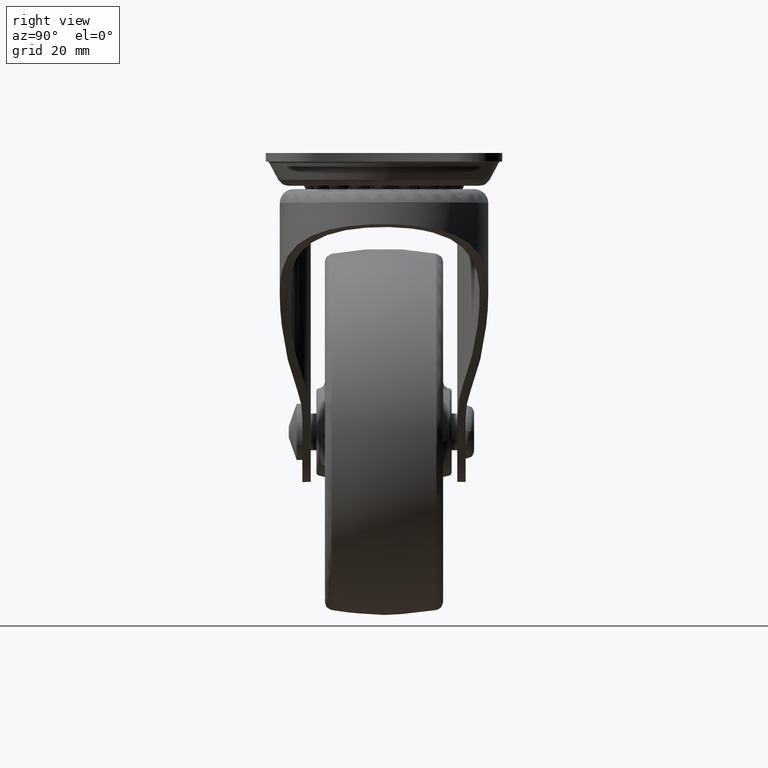
[diagram: clean part render]
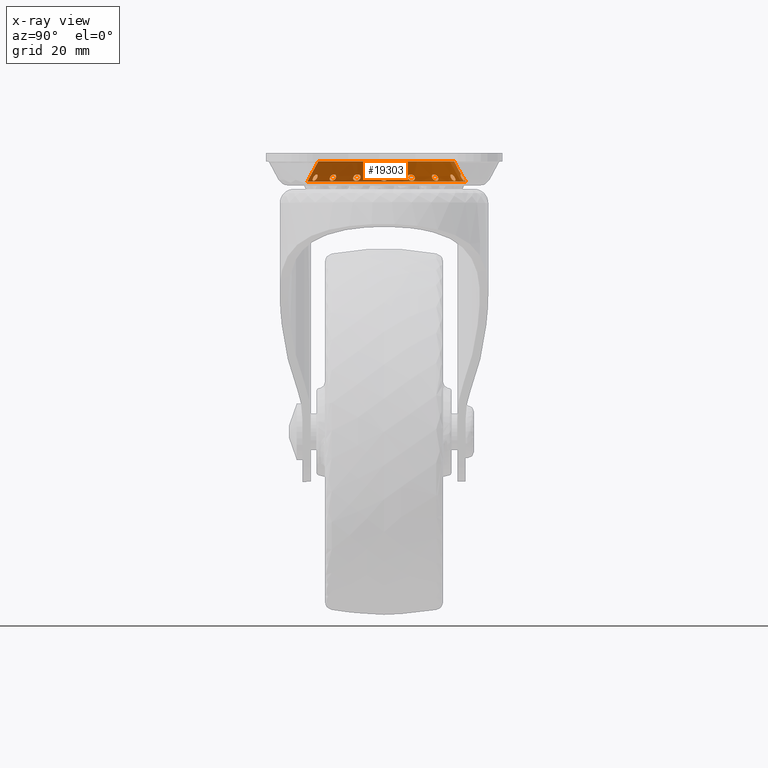
[diagram: x-ray — body ghosted, one internal face saturated and labeled with its STEP entity id]
A machine part, right view, then the same camera in x-ray: the body is ghosted and one INTERNAL B-rep face — a face not visible from any outside direction — is saturated and labeled: STEP entity #19303.
In plain terms, the highlighted face is a freeform B-spline surface patch.
Its self-contained STEP definition (entity closure, byte-faithful):
#18310=CARTESIAN_POINT('',(-4.345131098593241,-11.621581030227340,0.088749980999082));
#18311=CARTESIAN_POINT('',(-15.966712128820582,-7.276449931634098,0.088749980999082));
#18312=CARTESIAN_POINT('',(-11.621581030227340,4.345131098593241,0.088749980999082));
#18313=CARTESIAN_POINT('',(-7.276449931634098,15.966712128820582,0.088749980999082));
#18314=CARTESIAN_POINT('',(4.345131098593241,11.621581030227340,0.088749980999082));
#18315=CARTESIAN_POINT('',(-5.099251445940236,-13.638567520249170,-3.640967970487333));
#18316=CARTESIAN_POINT('',(-18.737818966189401,-8.539316074308935,-3.640967970487333));
#18317=CARTESIAN_POINT('',(-13.638567520249170,5.099251445940236,-3.640967970487333));
#18318=CARTESIAN_POINT('',(-8.539316074308935,18.737818966189401,-3.640967970487333));
#18319=CARTESIAN_POINT('',(5.099251445940236,13.638567520249170,-3.640967970487333));
#18327=(BOUNDED_SURFACE()B_SPLINE_SURFACE(2,1,((#18310,#18315),(#18311,#18316),(#18312,#18317),(#18313,#18318),(#18314,#18319)),.UNSPECIFIED.,.F.,.F.,.U.)B_SPLINE_SURFACE_WITH_KNOTS((3,2,3),(2,2),(0.0,24.124895360719449,48.249790721438892),(0.0,4.306707326584123),.UNSPECIFIED.)GEOMETRIC_REPRESENTATION_ITEM()RATIONAL_B_SPLINE_SURFACE(((1.0,1.0),(0.707106781186548,0.707106781186548),(1.0,1.0),(0.707106781186548,0.707106781186548),(1.0,1.0)))REPRESENTATION_ITEM('')SURFACE());
#18328=CARTESIAN_POINT('',(-4.363075819583646,-11.669576366690711,-0.000000154223173));
#18329=VERTEX_POINT('',#18328);
#18330=CARTESIAN_POINT('',(-12.458548554798501,0.0,-4.440892E-016));
#18331=VERTEX_POINT('',#18330);
#18332=CARTESIAN_POINT('',(-4.363075819583646,-11.669576366690711,-0.000000154223173));
#18333=CARTESIAN_POINT('',(-5.100364012883849,-11.394015319106639,-0.000000150581404));
#18334=CARTESIAN_POINT('',(-6.522398462467612,-10.702446296329770,-0.000000141441743));
#18335=CARTESIAN_POINT('',(-8.200329237814623,-9.447735761953826,-0.000000124859698));
#18336=CARTESIAN_POINT('',(-9.658589838928132,-7.950847530313212,-0.000000105077074));
#18337=CARTESIAN_POINT('',(-10.914870438893891,-6.176272934049472,-0.000000081624592));
#18338=CARTESIAN_POINT('',(-11.796223633095980,-4.186420203516345,-0.000000055327031));
#18339=CARTESIAN_POINT('',(-12.335024518801410,-2.085766312849493,-0.000000027565140));
#18340=CARTESIAN_POINT('',(-12.458644182756791,-0.787099550660382,-0.000000010402177));
#18341=CARTESIAN_POINT('',(-12.458548554798501,0.0,-4.440892E-016));
#18342=B_SPLINE_CURVE_WITH_KNOTS('',3,(#18332,#18333,#18334,#18335,#18336,#18337,#18338,#18339,#18340,#18341),.UNSPECIFIED.,.F.,.U.,(4,1,1,1,1,1,1,4),(0.000000061852072,2.361294715039868,4.722611906942650,6.257457265564861,8.618717848038118,11.216177082323480,12.751038650888949,15.112323931766470),.UNSPECIFIED.);
#18343=EDGE_CURVE('',#18329,#18331,#18342,.T.);
#18344=ORIENTED_EDGE('',*,*,#18343,.F.);
#18345=CARTESIAN_POINT('',(-5.080858266469647,-13.589372727095551,-3.549999238642847));
#18346=VERTEX_POINT('',#18345);
#18347=CARTESIAN_POINT('',(-4.363075819583646,-11.669576366690711,-0.000000154223173));
#18348=CARTESIAN_POINT('',(-5.080858266469647,-13.589372727095551,-3.549999238642847));
#18349=QUASI_UNIFORM_CURVE('',1,(#18347,#18348),.UNSPECIFIED.,.F.,.U.);
#18350=EDGE_CURVE('',#18329,#18346,#18349,.T.);
#18351=ORIENTED_EDGE('',*,*,#18350,.T.);
#18352=CARTESIAN_POINT('',(-14.508141570825201,0.0,-3.549999238596580));
#18353=VERTEX_POINT('',#18352);
#18354=CARTESIAN_POINT('',(-5.080858266469647,-13.589372727095551,-3.549999238642847));
#18355=CARTESIAN_POINT('',(-6.154153296107363,-13.188380017475181,-3.549999238620194));
#18356=CARTESIAN_POINT('',(-7.917591752344013,-12.278170045437820,-3.549999238586760));
#18357=CARTESIAN_POINT('',(-10.027750692505361,-10.571747932212970,-3.549999238556176));
#18358=CARTESIAN_POINT('',(-11.621000218065531,-8.790295699373264,-3.549999238540486));
#18359=CARTESIAN_POINT('',(-12.884137117752180,-6.813611622289675,-3.549999238536719));
#18360=CARTESIAN_POINT('',(-13.767134128690850,-4.740926302489226,-3.549999238544443));
#18361=CARTESIAN_POINT('',(-14.359939451823619,-2.474733320921490,-3.549999238563067));
#18362=CARTESIAN_POINT('',(-14.508264497563619,-0.916590389238811,-3.549999238582582));
#18363=CARTESIAN_POINT('',(-14.508141570825201,0.0,-3.549999238596580));
#18364=B_SPLINE_CURVE_WITH_KNOTS('',3,(#18354,#18355,#18356,#18357,#18358,#18359,#18360,#18361,#18362,#18363),.UNSPECIFIED.,.F.,.U.,(4,1,1,1,1,1,1,4),(0.000000056449597,3.437202688152835,5.912003198458375,8.111822244051639,10.586593343562450,12.923896079206941,14.848746904277020,17.598497143077370),.UNSPECIFIED.);
#18365=EDGE_CURVE('',#18346,#18353,#18364,.T.);
#18366=ORIENTED_EDGE('',*,*,#18365,.T.);
#18367=CARTESIAN_POINT('',(5.080858266580087,13.589372727390730,-3.549999239188730));
#18368=VERTEX_POINT('',#18367);
#18369=CARTESIAN_POINT('',(-14.508141570825201,0.0,-3.549999238596580));
#18370=CARTESIAN_POINT('',(-14.508436978812050,1.202309988804199,-3.549999238538903));
#18371=CARTESIAN_POINT('',(-14.280347000507771,3.023754511119652,-3.549999238466042));
#18372=CARTESIAN_POINT('',(-13.426933696549369,5.663837370018808,-3.549999238393612));
#18373=CARTESIAN_POINT('',(-12.272687282733941,7.910645423284574,-3.549999238359161));
#18374=CARTESIAN_POINT('',(-10.657567301001380,9.947061830031698,-3.549999238364066));
#18375=CARTESIAN_POINT('',(-8.699269625477287,11.702457925536731,-3.549999238404193));
#18376=CARTESIAN_POINT('',(-6.834788363207838,12.865021926203760,-3.549999238466905));
#18377=CARTESIAN_POINT('',(-4.787630998114046,13.737917905664100,-3.549999238554980));
#18378=CARTESIAN_POINT('',(-3.099806515217604,14.214198029419331,-3.549999238639232));
#18379=CARTESIAN_POINT('',(-1.078747864094298,14.513369877437921,-3.549999238753339));
#18380=CARTESIAN_POINT('',(0.749022391046620,14.534128039263431,-3.549999238868348));
#18381=CARTESIAN_POINT('',(2.921151192118699,14.262802365293091,-3.549999239019317));
#18382=CARTESIAN_POINT('',(4.261883706154423,13.895673724404331,-3.549999239121891));
#18383=CARTESIAN_POINT('',(5.080858266580087,13.589372727390730,-3.549999239188730));
#18384=B_SPLINE_CURVE_WITH_KNOTS('',3,(#18369,#18370,#18371,#18372,#18373,#18374,#18375,#18376,#18377,#18378,#18379,#18380,#18381,#18382,#18383),.UNSPECIFIED.,.F.,.U.,(4,1,1,1,1,1,1,1,1,1,1,1,4),(0.000000134335234,3.606828649564921,5.464890610632892,8.306654939102035,11.148432511927130,13.225123466100740,16.176069657620079,17.706287802970401,19.892247540363869,21.422426829172569,23.826989174953571,25.357181825860060,27.980305847905921),.UNSPECIFIED.);
#18385=EDGE_CURVE('',#18353,#18368,#18384,.T.);
#18386=ORIENTED_EDGE('',*,*,#18385,.T.);
#18387=CARTESIAN_POINT('',(4.363075819583656,11.669576366690739,-0.000000154223184));
#18388=VERTEX_POINT('',#18387);
#18389=CARTESIAN_POINT('',(4.363075819583656,11.669576366690739,-0.000000154223184));
#18390=CARTESIAN_POINT('',(5.080858266580087,13.589372727390730,-3.549999239188730));
#18391=QUASI_UNIFORM_CURVE('',1,(#18389,#18390),.UNSPECIFIED.,.F.,.U.);
#18392=EDGE_CURVE('',#18388,#18368,#18391,.T.);
#18393=ORIENTED_EDGE('',*,*,#18392,.F.);
#18394=CARTESIAN_POINT('',(0.000002171532153,12.458548554798311,-4.440892E-016));
#18395=VERTEX_POINT('',#18394);
#18396=CARTESIAN_POINT('',(0.000002171532153,12.458548554798311,-4.440892E-016));
#18397=CARTESIAN_POINT('',(0.696503247325659,12.458607225285141,-0.000000024619482));
#18398=CARTESIAN_POINT('',(2.182339881349141,12.333606174747960,-0.000000077139900));
#18399=CARTESIAN_POINT('',(3.623730071402797,11.946106548387741,-0.000000128089255));
#18400=CARTESIAN_POINT('',(4.363075819583656,11.669576366690739,-0.000000154223184));
#18401=B_SPLINE_CURVE_WITH_KNOTS('',3,(#18396,#18397,#18398,#18399,#18400),.UNSPECIFIED.,.F.,.U.,(4,1,4),(4.361441E-009,2.089502774767784,4.457596318446976),.UNSPECIFIED.);
#18402=EDGE_CURVE('',#18395,#18388,#18401,.T.);
#18403=ORIENTED_EDGE('',*,*,#18402,.F.);
#18404=CARTESIAN_POINT('',(-12.458548554798501,0.0,-4.440892E-016));
#18405=CARTESIAN_POINT('',(-12.458637903065499,0.815407036670043,-4.586235E-016));
#18406=CARTESIAN_POINT('',(-12.297898625386321,2.446198335372719,-4.848238E-016));
#18407=CARTESIAN_POINT('',(-11.614139695716609,4.700402046121842,-5.128133E-016));
#18408=CARTESIAN_POINT('',(-10.601109362191719,6.652781797564220,-5.295550E-016));
#18409=CARTESIAN_POINT('',(-9.464917821611451,8.165164176358173,-5.362598E-016));
#18410=CARTESIAN_POINT('',(-7.984722203510500,9.645548779066379,-5.362631E-016));
#18411=CARTESIAN_POINT('',(-6.475611498729761,10.708421018120930,-5.283100E-016));
#18412=CARTESIAN_POINT('',(-4.733029996143512,11.558734129187821,-5.124074E-016));
#18413=CARTESIAN_POINT('',(-2.751869666681905,12.240482322701430,-4.892484E-016));
#18414=CARTESIAN_POINT('',(-1.070250724499564,12.458847499043239,-4.631693E-016));
#18415=CARTESIAN_POINT('',(0.000002171532153,12.458548554798311,-4.440892E-016));
#18416=B_SPLINE_CURVE_WITH_KNOTS('',3,(#18404,#18405,#18406,#18407,#18408,#18409,#18410,#18411,#18412,#18413,#18414,#18415),.UNSPECIFIED.,.F.,.U.,(4,1,1,1,1,1,1,1,1,4),(0.000000043179508,2.446222376077834,4.892492109223527,7.032972209633664,9.020567253049107,10.549397123962740,13.301448354157390,14.524582568921950,16.359287903050070,19.569966323446870),.UNSPECIFIED.);
#18417=EDGE_CURVE('',#18331,#18395,#18416,.T.);
#18418=ORIENTED_EDGE('',*,*,#18417,.F.);
#18419=EDGE_LOOP('',(#18344,#18351,#18366,#18386,#18393,#18403,#18418));
#18420=FACE_OUTER_BOUND('',#18419,.T.);
#18421=CARTESIAN_POINT('',(2.394872362837921,13.581996091667520,-2.308774742722210));
#18422=VERTEX_POINT('',#18421);
#18423=CARTESIAN_POINT('',(2.509809630384678,14.230997936109230,-3.450370648652851));
#18424=VERTEX_POINT('',#18423);
#18425=CARTESIAN_POINT('',(2.394872362837921,13.581996091667520,-2.308774742722210));
#18426=CARTESIAN_POINT('',(2.439062616615603,13.574204157642161,-2.308774742722211));
#18427=CARTESIAN_POINT('',(2.482918802483485,13.568338458674130,-2.312339167791087));
#18428=CARTESIAN_POINT('',(2.548220951480661,13.562347403383200,-2.322848515478087));
#18429=CARTESIAN_POINT('',(2.569907467776361,13.560821803100261,-2.327217914013795));
#18430=CARTESIAN_POINT('',(2.613115788909981,13.558742293367001,-2.337728901388421));
#18431=CARTESIAN_POINT('',(2.634747666688108,13.558189898631049,-2.343910037545361));
#18432=CARTESIAN_POINT('',(2.698365798141124,13.558071362787731,-2.364891418676009));
#18433=CARTESIAN_POINT('',(2.739132981828389,13.560001040084259,-2.382070915034463));
#18434=CARTESIAN_POINT('',(2.797818305826494,13.565980149056371,-2.412612679054459));
#18435=CARTESIAN_POINT('',(2.816966460630070,13.568490817056270,-2.423593913160407));
#18436=CARTESIAN_POINT('',(2.854400212722136,13.574606560198299,-2.447223681676780));
#18437=CARTESIAN_POINT('',(2.872665480340927,13.578217719565689,-2.459876044108358));
#18438=CARTESIAN_POINT('',(2.924896981985429,13.590496925597780,-2.499506925459808));
#18439=CARTESIAN_POINT('',(2.956760153893792,13.600659552003309,-2.528403737488333));
#18440=CARTESIAN_POINT('',(3.014415499046480,13.625154934806631,-2.591239262535997));
#18441=CARTESIAN_POINT('',(3.040314482264937,13.639659913087661,-2.625511610948621));
#18442=CARTESIAN_POINT('',(3.083247579490186,13.671803077409299,-2.696105479237255));
#18443=CARTESIAN_POINT('',(3.100652727390825,13.689543082722709,-2.732736230242311));
#18444=CARTESIAN_POINT('',(3.120387836492562,13.718817685681261,-2.789753047638338));
#18445=CARTESIAN_POINT('',(3.125872099067480,13.729021580747871,-2.809094807459812));
#18446=CARTESIAN_POINT('',(3.134405524507644,13.749821704069110,-2.847504775003032));
#18447=CARTESIAN_POINT('',(3.140596359567323,13.771137013003131,-2.885884221456016));
#18448=CARTESIAN_POINT('',(3.142163942771507,13.793470595375251,-2.924202570224437));
#18449=CARTESIAN_POINT('',(3.141378820171163,13.816320346440349,-2.962490969690739));
#18450=CARTESIAN_POINT('',(3.139786437880686,13.828062300233020,-2.981710871967798));
#18451=CARTESIAN_POINT('',(3.131553927791975,13.863275772177211,-3.038041342535352));
#18452=CARTESIAN_POINT('',(3.121531028145962,13.886930095018410,-3.074177675468005));
#18453=CARTESIAN_POINT('',(3.099875563520484,13.922626687615439,-3.126342728512456));
#18454=CARTESIAN_POINT('',(3.091487064596765,13.934628885316521,-3.143481056295675));
#18455=CARTESIAN_POINT('',(3.072764141911843,13.958276464212830,-3.176476986747779));
#18456=CARTESIAN_POINT('',(3.062439886095567,13.969930780695099,-3.192353260132842));
#18457=CARTESIAN_POINT('',(3.028687074166849,14.004388671271100,-3.238198899743796));
#18458=CARTESIAN_POINT('',(3.002371634040616,14.026787113477321,-3.266514553150532));
#18459=CARTESIAN_POINT('',(2.942850935272424,14.069734637579280,-3.317948541820292));
#18460=CARTESIAN_POINT('',(2.910333807800084,14.089818371538421,-3.340525010290998));
#18461=CARTESIAN_POINT('',(2.840095261710036,14.127285358381441,-3.379819355399451));
#18462=CARTESIAN_POINT('',(2.801968774158322,14.144803395553680,-3.396633966324932));
#18463=CARTESIAN_POINT('',(2.723020285347737,14.175910206365010,-3.423332556014981));
#18464=CARTESIAN_POINT('',(2.682092372565044,14.189610741675480,-3.433363089414016));
#18465=CARTESIAN_POINT('',(2.618545320685069,14.207388998574411,-3.443523019207265));
#18466=CARTESIAN_POINT('',(2.596895239705473,14.212872983753121,-3.446096120156808));
#18467=CARTESIAN_POINT('',(2.553417999979146,14.222750922804179,-3.449510319058088));
#18468=CARTESIAN_POINT('',(2.531635298137120,14.227141431343480,-3.450358226337273));
#18469=CARTESIAN_POINT('',(2.509809630384706,14.230997936109230,-3.450370648652851));
#18470=B_SPLINE_CURVE_WITH_KNOTS('',3,(#18425,#18426,#18427,#18428,#18429,#18430,#18431,#18432,#18433,#18434,#18435,#18436,#18437,#18438,#18439,#18440,#18441,#18442,#18443,#18444,#18445,#18446,#18447,#18448,#18449,#18450,#18451,#18452,#18453,#18454,#18455,#18456,#18457,#18458,#18459,#18460,#18461,#18462,#18463,#18464,#18465,#18466,#18467,#18468,#18469),.UNSPECIFIED.,.F.,.U.,(4,2,2,2,2,2,2,2,2,2,2,1,2,2,2,2,2,2,2,2,2,2,4),(0.0,0.031250000000000,0.046874999999999,0.062499999999999,0.093749999999999,0.109374999999998,0.124999999999998,0.156249999999997,0.187499999999996,0.218749999999995,0.234374999999995,0.249999999999994,0.265624999999994,0.281249999999993,0.312499999999993,0.328124999999993,0.343749999999993,0.374999999999993,0.406249999999993,0.437499999999993,0.468749999999993,0.484374999999993,0.499999999999994),.UNSPECIFIED.);
#18471=EDGE_CURVE('',#18422,#18424,#18470,.T.);
#18472=ORIENTED_EDGE('',*,*,#18471,.T.);
#18473=CARTESIAN_POINT('',(2.509809630384706,14.230997936109230,-3.450370648652851));
#18474=CARTESIAN_POINT('',(2.466158294879878,14.238710945640721,-3.450395493284009));
#18475=CARTESIAN_POINT('',(2.422336082948383,14.244301350893510,-3.447101498416917));
#18476=CARTESIAN_POINT('',(2.356341607522702,14.249429341846740,-3.437041825271279));
#18477=CARTESIAN_POINT('',(2.334248218151152,14.250587908854220,-3.432808683561466));
#18478=CARTESIAN_POINT('',(2.290865690901801,14.251755144529660,-3.422768534570376));
#18479=CARTESIAN_POINT('',(2.269468476773495,14.251775183472510,-3.416949672610869));
#18480=CARTESIAN_POINT('',(2.206151312428727,14.250171889874920,-3.397116021398822));
#18481=CARTESIAN_POINT('',(2.165096931594176,14.246900724502551,-3.380748549802581));
#18482=CARTESIAN_POINT('',(2.085463057819706,14.235742327876309,-3.341275026737086));
#18483=CARTESIAN_POINT('',(2.047812872704451,14.227959445008681,-3.318586445675446));
#18484=CARTESIAN_POINT('',(1.977995937598541,14.208342654578340,-3.267993755857206));
#18485=CARTESIAN_POINT('',(1.945466771958050,14.196406839562931,-3.239827180470824));
#18486=CARTESIAN_POINT('',(1.886678669870930,14.168463263874820,-3.178230487966055));
#18487=CARTESIAN_POINT('',(1.861117682678652,14.152824780818060,-3.145592231861906));
#18488=CARTESIAN_POINT('',(1.828510211258827,14.126941969925950,-3.093848988698150));
#18489=CARTESIAN_POINT('',(1.818603557057485,14.117907085765051,-3.076133713065643));
#18490=CARTESIAN_POINT('',(1.800801874040868,14.098995602904250,-3.039721367107412));
#18491=CARTESIAN_POINT('',(1.792935725446547,14.089125469384630,-3.021041803177839));
#18492=CARTESIAN_POINT('',(1.772988527508403,14.058991069647130,-2.964913958775180));
#18493=CARTESIAN_POINT('',(1.764282416343253,14.037974613108190,-2.926920770788880));
#18494=CARTESIAN_POINT('',(1.758213511869533,14.005059642868940,-2.869044868601066));
#18495=CARTESIAN_POINT('',(1.757374777344514,13.993787872888181,-2.849492538805219));
#18496=CARTESIAN_POINT('',(1.758124198577835,13.971256541780489,-2.810933785322689));
#18497=CARTESIAN_POINT('',(1.761258488669385,13.948669527020931,-2.772795240573445));
#18498=CARTESIAN_POINT('',(1.769035457887678,13.925967526238001,-2.735478694213843));
#18499=CARTESIAN_POINT('',(1.779141484025117,13.903201964797621,-2.698578054632604));
#18500=CARTESIAN_POINT('',(1.785404791857501,13.891721674708700,-2.680232932030866));
#18501=CARTESIAN_POINT('',(1.807436261699953,13.857712100680789,-2.626699863662114));
#18502=CARTESIAN_POINT('',(1.826297200513124,13.835686320162230,-2.593103045039509));
#18503=CARTESIAN_POINT('',(1.871944791794015,13.792781750812781,-2.529936729663356));
#18504=CARTESIAN_POINT('',(1.898974567763632,13.771811092422890,-2.500270817368464));
#18505=CARTESIAN_POINT('',(1.958625414534853,13.732615079779070,-2.447389697285322));
#18506=CARTESIAN_POINT('',(1.991443105912324,13.714160996963651,-2.423824411612055));
#18507=CARTESIAN_POINT('',(2.063001459328880,13.679425179127071,-2.382455270794816));
#18508=CARTESIAN_POINT('',(2.100962827930653,13.663539577813751,-2.365136224620303));
#18509=CARTESIAN_POINT('',(2.180112722847953,13.634837993614081,-2.337263725042500));
#18510=CARTESIAN_POINT('',(2.221733021228927,13.621882606863030,-2.326590072647484));
#18511=CARTESIAN_POINT('',(2.307181593199904,13.599328148021851,-2.312344059367844));
#18512=CARTESIAN_POINT('',(2.350682109060238,13.589788025692879,-2.308774742722209));
#18513=CARTESIAN_POINT('',(2.394872362837921,13.581996091667520,-2.308774742722210));
#18514=B_SPLINE_CURVE_WITH_KNOTS('',3,(#18473,#18474,#18475,#18476,#18477,#18478,#18479,#18480,#18481,#18482,#18483,#18484,#18485,#18486,#18487,#18488,#18489,#18490,#18491,#18492,#18493,#18494,#18495,#18496,#18497,#18498,#18499,#18500,#18501,#18502,#18503,#18504,#18505,#18506,#18507,#18508,#18509,#18510,#18511,#18512,#18513),.UNSPECIFIED.,.F.,.U.,(4,2,2,2,2,2,2,2,2,2,2,2,1,2,2,2,2,2,2,2,4),(0.499999999999994,0.531249999999994,0.546874999999994,0.562499999999995,0.593749999999995,0.624999999999995,0.656249999999996,0.687499999999996,0.703124999999996,0.718749999999997,0.749999999999996,0.765624999999997,0.781249999999997,0.796874999999997,0.812499999999998,0.843749999999998,0.874999999999999,0.906249999999999,0.937499999999999,0.968750000000000,1.0),.UNSPECIFIED.);
#18515=EDGE_CURVE('',#18424,#18422,#18514,.T.);
#18516=ORIENTED_EDGE('',*,*,#18515,.T.);
#18517=EDGE_LOOP('',(#18472,#18516));
#18518=FACE_BOUND('',#18517,.T.);
#18519=CARTESIAN_POINT('',(-2.394872362842825,13.581996091695499,-2.308774742698625));
#18520=VERTEX_POINT('',#18519);
#18521=CARTESIAN_POINT('',(-2.508838364526279,14.231169196485510,-3.450370648652844));
#18522=VERTEX_POINT('',#18521);
#18523=CARTESIAN_POINT('',(-2.394872362842825,13.581996091695499,-2.308774742698625));
#18524=CARTESIAN_POINT('',(-2.350682109064657,13.589788025720940,-2.308774742698625));
#18525=CARTESIAN_POINT('',(-2.307464587623021,13.599275770633019,-2.312339167791033));
#18526=CARTESIAN_POINT('',(-2.244051578499305,13.615980670544980,-2.322848515478070));
#18527=CARTESIAN_POINT('',(-2.223151133138175,13.621964300628550,-2.327217914013798));
#18528=CARTESIAN_POINT('',(-2.181837358395252,13.634788316864370,-2.337728901388450));
#18529=CARTESIAN_POINT('',(-2.161321112346640,13.641667773545310,-2.343910037545395));
#18530=CARTESIAN_POINT('',(-2.101499082025913,13.663315068725730,-2.364891418676060));
#18531=CARTESIAN_POINT('',(-2.063850448850289,13.679071570249491,-2.382070915034527));
#18532=CARTESIAN_POINT('',(-2.010749258648422,13.704761657754419,-2.412612679054548));
#18533=CARTESIAN_POINT('',(-1.993614577906998,13.713669968597509,-2.423593913160505));
#18534=CARTESIAN_POINT('',(-1.960530064643722,13.732219984554449,-2.447223681676900));
#18535=CARTESIAN_POINT('',(-1.944601416690075,13.741860453813340,-2.459876044108482));
#18536=CARTESIAN_POINT('',(-1.899719595829190,13.771263358789380,-2.499506925459957));
#18537=CARTESIAN_POINT('',(-1.873253831251855,13.791710950453380,-2.528403737488501));
#18538=CARTESIAN_POINT('',(-1.827453443200227,13.834448370329630,-2.591239262536216));
#18539=CARTESIAN_POINT('',(-1.808077354534610,13.856936565337350,-2.625511610948860));
#18540=CARTESIAN_POINT('',(-1.778727049552820,13.901825243725510,-2.696105479237531));
#18541=CARTESIAN_POINT('',(-1.768438999666811,13.924448306990810,-2.732736230242610));
#18542=CARTESIAN_POINT('',(-1.759906567173230,13.958707240210961,-2.789753047638680));
#18543=CARTESIAN_POINT('',(-1.758242983754304,13.970171493380230,-2.809094807460157));
#18544=CARTESIAN_POINT('',(-1.757338247997707,13.992635819168740,-2.847504775003388));
#18545=CARTESIAN_POINT('',(-1.758811030992294,14.014783047978240,-2.885884221456386));
#18546=CARTESIAN_POINT('',(-1.764976519666780,14.036305895561201,-2.924202570224825));
#18547=CARTESIAN_POINT('',(-1.773529368715014,14.057509110279581,-2.962490969691143));
#18548=CARTESIAN_POINT('',(-1.779041703321955,14.067998310792939,-2.981710871968206));
#18549=CARTESIAN_POINT('',(-1.798821449024264,14.098272466250680,-3.038041342535764));
#18550=CARTESIAN_POINT('',(-1.816330148748958,14.117072225300770,-3.074177675468418));
#18551=CARTESIAN_POINT('',(-1.848888582773552,14.143209444836410,-3.126342728512877));
#18552=CARTESIAN_POINT('',(-1.860876186689607,14.151618785845150,-3.143481056296098));
#18553=CARTESIAN_POINT('',(-1.886557927299633,14.167436624533281,-3.176476986748191));
#18554=CARTESIAN_POINT('',(-1.900245565298942,14.174856996277940,-3.192353260133247));
#18555=CARTESIAN_POINT('',(-1.943748126272698,14.195692680206539,-3.238198899744187));
#18556=CARTESIAN_POINT('',(-1.976137269585749,14.207739920461160,-3.266514553150926));
#18557=CARTESIAN_POINT('',(-2.046757349351139,14.227740114017230,-3.317948541820641));
#18558=CARTESIAN_POINT('',(-2.084182495653309,14.235491138017810,-3.340525010291325));
#18559=CARTESIAN_POINT('',(-2.162999603318964,14.246675591476530,-3.379819355399733));
#18560=CARTESIAN_POINT('',(-2.204818303912264,14.250097135000971,-3.396633966325183));
#18561=CARTESIAN_POINT('',(-2.289644772161912,14.252326002118171,-3.423332556015168));
#18562=CARTESIAN_POINT('',(-2.332790288838530,14.251202123454240,-3.433363089414163));
#18563=CARTESIAN_POINT('',(-2.398585506535538,14.246173848480650,-3.443523019207358));
#18564=CARTESIAN_POINT('',(-2.420805561268313,14.243922345085920,-3.446096120156879));
#18565=CARTESIAN_POINT('',(-2.465039256741296,14.238334479758141,-3.449510319058116));
#18566=CARTESIAN_POINT('',(-2.487009943282915,14.235010085427980,-3.450358226337287));
#18567=CARTESIAN_POINT('',(-2.508838364526306,14.231169196485499,-3.450370648652844));
#18568=B_SPLINE_CURVE_WITH_KNOTS('',3,(#18523,#18524,#18525,#18526,#18527,#18528,#18529,#18530,#18531,#18532,#18533,#18534,#18535,#18536,#18537,#18538,#18539,#18540,#18541,#18542,#18543,#18544,#18545,#18546,#18547,#18548,#18549,#18550,#18551,#18552,#18553,#18554,#18555,#18556,#18557,#18558,#18559,#18560,#18561,#18562,#18563,#18564,#18565,#18566,#18567),.UNSPECIFIED.,.F.,.U.,(4,2,2,2,2,2,2,2,2,2,2,1,2,2,2,2,2,2,2,2,2,2,4),(0.0,0.031250000000001,0.046875000000001,0.062500000000002,0.093750000000003,0.109375000000004,0.125000000000005,0.156250000000006,0.187500000000007,0.218750000000008,0.234375000000008,0.250000000000008,0.265625000000008,0.281250000000008,0.312500000000009,0.328125000000009,0.343750000000009,0.375000000000008,0.406250000000008,0.437500000000007,0.468750000000007,0.484375000000007,0.500000000000006),.UNSPECIFIED.);
#18569=EDGE_CURVE('',#18520,#18522,#18568,.T.);
#18570=ORIENTED_EDGE('',*,*,#18569,.T.);
#18571=CARTESIAN_POINT('',(-2.508838364526306,14.231169196485499,-3.450370648652844));
#18572=CARTESIAN_POINT('',(-2.552495207013087,14.223487418600550,-3.450395493283958));
#18573=CARTESIAN_POINT('',(-2.595586647397446,14.213752601958110,-3.447101498416822));
#18574=CARTESIAN_POINT('',(-2.659355045168409,14.195999897272470,-3.437041825271109));
#18575=CARTESIAN_POINT('',(-2.680512293382953,14.189532209940660,-3.432808683561270));
#18576=CARTESIAN_POINT('',(-2.721677752223206,14.175791354503909,-3.422768534570130));
#18577=CARTESIAN_POINT('',(-2.741791410167050,14.168491906707690,-3.416949672610596));
#18578=CARTESIAN_POINT('',(-2.800741723564857,14.145329557920860,-3.397116021398473));
#18579=CARTESIAN_POINT('',(-2.838201417836508,14.128214242741860,-3.380748549802176));
#18580=CARTESIAN_POINT('',(-2.909216384973558,14.090492390850381,-3.341275026736556));
#18581=CARTESIAN_POINT('',(-2.941934083383655,14.070301751541860,-3.318586445674879));
#18582=CARTESIAN_POINT('',(-3.000831204633915,14.027989200179441,-3.267993755856532));
#18583=CARTESIAN_POINT('',(-3.027316332384303,14.005647572991720,-3.239827180470073));
#18584=CARTESIAN_POINT('',(-3.073001812343571,13.959282486017530,-3.178230487965223));
#18585=CARTESIAN_POINT('',(-3.091672607171620,13.935844746385740,-3.145592231861030));
#18586=CARTESIAN_POINT('',(-3.113461164756227,13.900370447936719,-3.093848988697205));
#18587=CARTESIAN_POINT('',(-3.119680262230227,13.888492158671241,-3.076133713064669));
#18588=CARTESIAN_POINT('',(-3.129940264319886,13.864632643602020,-3.039721367106382));
#18589=CARTESIAN_POINT('',(-3.133956241626907,13.852667370697819,-3.021041803176805));
#18590=CARTESIAN_POINT('',(-3.142393904617356,13.817527954134940,-2.964913958774108));
#18591=CARTESIAN_POINT('',(-3.143386921557250,13.794801279621719,-2.926920770787781));
#18592=CARTESIAN_POINT('',(-3.137832243468528,13.761795637396570,-2.869044868599919));
#18593=CARTESIAN_POINT('',(-3.134765223728091,13.750916774220009,-2.849492538804067));
#18594=CARTESIAN_POINT('',(-3.126354829030413,13.730000565799280,-2.810933785321542));
#18595=CARTESIAN_POINT('',(-3.115684345734526,13.709847705050500,-2.772795240572305));
#18596=CARTESIAN_POINT('',(-3.100611843586361,13.691174682564411,-2.735478694212700));
#18597=CARTESIAN_POINT('',(-3.083329004812714,13.673238516978840,-2.698578054631461));
#18598=CARTESIAN_POINT('',(-3.073516930199228,13.664592750540340,-2.680232932029723));
#18599=CARTESIAN_POINT('',(-3.041182161179612,13.640169411263480,-2.626699863661022));
#18600=CARTESIAN_POINT('',(-3.015925415545872,13.625922768839320,-2.593103045038449));
#18601=CARTESIAN_POINT('',(-2.958356483904162,13.601218057336080,-2.529936729662354));
#18602=CARTESIAN_POINT('',(-2.925784415295802,13.590756812245310,-2.500270817367515));
#18603=CARTESIAN_POINT('',(-2.856325128898884,13.574326399561960,-2.447389697284485));
#18604=CARTESIAN_POINT('',(-2.819174918430696,13.568209545625511,-2.423824411611273));
#18605=CARTESIAN_POINT('',(-2.740051712374414,13.560042952219289,-2.382455270794149));
#18606=CARTESIAN_POINT('',(-2.698946498786389,13.558098922618480,-2.365136224619726));
#18607=CARTESIAN_POINT('',(-2.614753406654888,13.558199114145120,-2.337263725042074));
#18608=CARTESIAN_POINT('',(-2.571212116157881,13.560260013233300,-2.326590072647131));
#18609=CARTESIAN_POINT('',(-2.483202644374535,13.568290887527009,-2.312344059367665));
#18610=CARTESIAN_POINT('',(-2.439062616620991,13.574204157670060,-2.308774742698625));
#18611=CARTESIAN_POINT('',(-2.394872362842825,13.581996091695499,-2.308774742698625));
#18612=B_SPLINE_CURVE_WITH_KNOTS('',3,(#18571,#18572,#18573,#18574,#18575,#18576,#18577,#18578,#18579,#18580,#18581,#18582,#18583,#18584,#18585,#18586,#18587,#18588,#18589,#18590,#18591,#18592,#18593,#18594,#18595,#18596,#18597,#18598,#18599,#18600,#18601,#18602,#18603,#18604,#18605,#18606,#18607,#18608,#18609,#18610,#18611),.UNSPECIFIED.,.F.,.U.,(4,2,2,2,2,2,2,2,2,2,2,2,1,2,2,2,2,2,2,2,4),(0.500000000000006,0.531250000000006,0.546875000000005,0.562500000000005,0.593750000000004,0.625000000000003,0.656250000000002,0.687500000000000,0.703125000000000,0.718749999999999,0.749999999999999,0.765624999999999,0.781249999999999,0.796874999999998,0.812499999999998,0.843749999999999,0.874999999999999,0.906249999999999,0.937499999999999,0.968750000000000,1.0),.UNSPECIFIED.);
#18613=EDGE_CURVE('',#18522,#18520,#18612,.T.);
#18614=ORIENTED_EDGE('',*,*,#18613,.T.);
#18615=EDGE_LOOP('',(#18570,#18614));
#18616=FACE_BOUND('',#18615,.T.);
#18617=CARTESIAN_POINT('',(-6.895760137003681,11.943806914098520,-2.308774742722205));
#18618=VERTEX_POINT('',#18617);
#18619=CARTESIAN_POINT('',(-7.224883426163031,12.514851422077349,-3.450370648652839));
#18620=VERTEX_POINT('',#18619);
#18621=CARTESIAN_POINT('',(-6.895760137003681,11.943806914098520,-2.308774742722205));
#18622=CARTESIAN_POINT('',(-6.856899880010275,11.966242893934441,-2.308774742722206));
#18623=CARTESIAN_POINT('',(-6.819533693910992,11.989939720718960,-2.312339167791095));
#18624=CARTESIAN_POINT('',(-6.765658369438020,12.027325718366210,-2.322848515478094));
#18625=CARTESIAN_POINT('',(-6.748064897179881,12.040096864719191,-2.327217914013804));
#18626=CARTESIAN_POINT('',(-6.713628719788214,12.066277641303669,-2.337728901388432));
#18627=CARTESIAN_POINT('',(-6.696702667530136,12.079759185395821,-2.343910037545374));
#18628=CARTESIAN_POINT('',(-6.647892158077547,12.120561328321140,-2.364891418676023));
#18629=CARTESIAN_POINT('',(-6.617903056209209,12.148244187447149,-2.382070915034477));
#18630=CARTESIAN_POINT('',(-6.576790787032060,12.190546649786461,-2.412612679054473));
#18631=CARTESIAN_POINT('',(-6.563736275731174,12.204778129712400,-2.423593913160423));
#18632=CARTESIAN_POINT('',(-6.538991481871673,12.233525012790739,-2.447223681676797));
#18633=CARTESIAN_POINT('',(-6.527320683608181,12.248032009070320,-2.459876044108368));
#18634=CARTESIAN_POINT('',(-6.495201953511860,12.291012188709511,-2.499506925459817));
#18635=CARTESIAN_POINT('',(-6.477325758066662,12.319278464302970,-2.528403737488342));
#18636=CARTESIAN_POINT('',(-6.448904529856845,12.375103157677881,-2.591239262536007));
#18637=CARTESIAN_POINT('',(-6.438388377997735,12.402862161203920,-2.625511610948630));
#18638=CARTESIAN_POINT('',(-6.426160945204519,12.455082116558639,-2.696105479237266));
#18639=CARTESIAN_POINT('',(-6.424230883984801,12.479859562465171,-2.732736230242322));
#18640=CARTESIAN_POINT('',(-6.427930265383324,12.514970692992501,-2.789753047638352));
#18641=CARTESIAN_POINT('',(-6.430288013832558,12.526312546137859,-2.809094807459819));
#18642=CARTESIAN_POINT('',(-6.437121092244199,12.547731545165400,-2.847504775003036));
#18643=CARTESIAN_POINT('',(-6.446079853927901,12.568039411197651,-2.885884221456021));
#18644=CARTESIAN_POINT('',(-6.459234765553918,12.586155550929551,-2.924202570224445));
#18645=CARTESIAN_POINT('',(-6.474523741228146,12.603154808680030,-2.962490969690748));
#18646=CARTESIAN_POINT('',(-6.483291159244522,12.611126103528060,-2.981710871967799));
#18647=CARTESIAN_POINT('',(-6.512232411310672,12.632809432552200,-3.038041342535355));
#18648=CARTESIAN_POINT('',(-6.535115103526290,12.644487099414849,-3.074177675468005));
#18649=CARTESIAN_POINT('',(-6.574649479295201,12.657912411468830,-3.126342728512458));
#18650=CARTESIAN_POINT('',(-6.588790306253084,12.661714605150920,-3.143481056295675));
#18651=CARTESIAN_POINT('',(-6.618333267848452,12.667794838838670,-3.176476986747778));
#18652=CARTESIAN_POINT('',(-6.633733356880010,12.670086259500319,-3.192353260132839));
#18653=CARTESIAN_POINT('',(-6.681738616015838,12.674786645797809,-3.238198899743793));
#18654=CARTESIAN_POINT('',(-6.716294853819194,12.675029609127810,-3.266514553150527));
#18655=CARTESIAN_POINT('',(-6.789496490720581,12.669670153623761,-3.317948541820289));
#18656=CARTESIAN_POINT('',(-6.827315630872145,12.664153579778420,-3.340525010290993));
#18657=CARTESIAN_POINT('',(-6.905204793712166,12.647706489700850,-3.379819355399446));
#18658=CARTESIAN_POINT('',(-6.945671754877135,12.636618850931891,-3.396633966324925));
#18659=CARTESIAN_POINT('',(-7.026144878589511,12.609700940086141,-3.423332556014975));
#18660=CARTESIAN_POINT('',(-7.066304013088794,12.593888203801431,-3.433363089414004));
#18661=CARTESIAN_POINT('',(-7.126411522314497,12.566659881126631,-3.443523019207254));
#18662=CARTESIAN_POINT('',(-7.146521484266570,12.556944453696550,-3.446096120156795));
#18663=CARTESIAN_POINT('',(-7.186176398992337,12.536564763016621,-3.449510319058075));
#18664=CARTESIAN_POINT('',(-7.205685081183824,12.525926436836070,-3.450358226337261));
#18665=CARTESIAN_POINT('',(-7.224883426163040,12.514851422077349,-3.450370648652839));
#18666=B_SPLINE_CURVE_WITH_KNOTS('',3,(#18621,#18622,#18623,#18624,#18625,#18626,#18627,#18628,#18629,#18630,#18631,#18632,#18633,#18634,#18635,#18636,#18637,#18638,#18639,#18640,#18641,#18642,#18643,#18644,#18645,#18646,#18647,#18648,#18649,#18650,#18651,#18652,#18653,#18654,#18655,#18656,#18657,#18658,#18659,#18660,#18661,#18662,#18663,#18664,#18665),.UNSPECIFIED.,.F.,.U.,(4,2,2,2,2,2,2,2,2,2,2,1,2,2,2,2,2,2,2,2,2,2,4),(0.0,0.031250000000000,0.046875000000000,0.062500000000000,0.093750000000001,0.109375000000001,0.125000000000001,0.156250000000000,0.187500000000000,0.218749999999999,0.234374999999999,0.249999999999999,0.265624999999999,0.281249999999999,0.312500000000000,0.328125000000000,0.343750000000000,0.375000000000001,0.406250000000001,0.437500000000002,0.468750000000002,0.484375000000002,0.500000000000002),.UNSPECIFIED.);
#18667=EDGE_CURVE('',#18618,#18620,#18666,.T.);
#18668=ORIENTED_EDGE('',*,*,#18667,.T.);
#18669=CARTESIAN_POINT('',(-7.224883426163040,12.514851422077349,-3.450370648652839));
#18670=CARTESIAN_POINT('',(-7.263280116121473,12.492701392559891,-3.450395493283995));
#18671=CARTESIAN_POINT('',(-7.300443321286398,12.468815516579960,-3.447101498416904));
#18672=CARTESIAN_POINT('',(-7.354294231510109,12.430323354442651,-3.437041825271266));
#18673=CARTESIAN_POINT('',(-7.371963462185252,12.417009511316699,-3.432808683561457));
#18674=CARTESIAN_POINT('',(-7.405946690742831,12.390017914726910,-3.422768534570365));
#18675=CARTESIAN_POINT('',(-7.422350788508220,12.376279401324240,-3.416949672610853));
#18676=CARTESIAN_POINT('',(-7.469823973149357,12.334351718451810,-3.397116021398807));
#18677=CARTESIAN_POINT('',(-7.499170788882761,12.305456613071980,-3.380748549802568));
#18678=CARTESIAN_POINT('',(-7.553001396276416,12.245721117968770,-3.341275026737073));
#18679=CARTESIAN_POINT('',(-7.576840370691401,12.215558011302090,-3.318586445675429));
#18680=CARTESIAN_POINT('',(-7.617713816034443,12.155653217168730,-3.267993755857189));
#18681=CARTESIAN_POINT('',(-7.634960408609222,12.125600507774930,-3.239827180470812));
#18682=CARTESIAN_POINT('',(-7.662032923311923,12.066406223279600,-3.178230487966046));
#18683=CARTESIAN_POINT('',(-7.671561552368016,12.037996164376599,-3.145592231861897));
#18684=CARTESIAN_POINT('',(-7.679903174508024,11.997209102308521,-3.093848988698141));
#18685=CARTESIAN_POINT('',(-7.681684600315281,11.983920104928780,-3.076133713065631));
#18686=CARTESIAN_POINT('',(-7.683165413804603,11.957990367297469,-3.039721367107399));
#18687=CARTESIAN_POINT('',(-7.682846833691668,11.945373143509540,-3.021041803177827));
#18688=CARTESIAN_POINT('',(-7.678757255051372,11.909467042361300,-2.964913958775167));
#18689=CARTESIAN_POINT('',(-7.671917405267859,11.887771322230080,-2.926920770788868));
#18690=CARTESIAN_POINT('',(-7.655409120772779,11.858655975582799,-2.869044868601054));
#18691=CARTESIAN_POINT('',(-7.648806274612058,11.849482170664420,-2.849492538805209));
#18692=CARTESIAN_POINT('',(-7.633749324174949,11.832703888356519,-2.810933785322681));
#18693=CARTESIAN_POINT('',(-7.616829557379113,11.817416007335479,-2.772795262510058));
#18694=CARTESIAN_POINT('',(-7.596279596567599,11.805024111956310,-2.735478694213837));
#18695=CARTESIAN_POINT('',(-7.573904510581563,11.794080708504740,-2.698578054632596));
#18696=CARTESIAN_POINT('',(-7.561727150196259,11.789312272747029,-2.680232932030858));
#18697=CARTESIAN_POINT('',(-7.522989132353847,11.777420983388019,-2.626699863662108));
#18698=CARTESIAN_POINT('',(-7.494382916173001,11.772671834392581,-2.593103045039505));
#18699=CARTESIAN_POINT('',(-7.431836306953749,11.769146733545430,-2.529936729663353));
#18700=CARTESIAN_POINT('',(-7.397650617893484,11.770456682303159,-2.500270817368461));
#18701=CARTESIAN_POINT('',(-7.326760706920480,11.778773619836800,-2.447389697285319));
#18702=CARTESIAN_POINT('',(-7.289758841022890,11.785731777639141,-2.423824411612055));
#18703=CARTESIAN_POINT('',(-7.212614208711716,11.805119420353980,-2.382455270794818));
#18704=CARTESIAN_POINT('',(-7.173323045544515,11.817351441126259,-2.365136224620303));
#18705=CARTESIAN_POINT('',(-7.094241685667746,11.846241323802230,-2.337263725042500));
#18706=CARTESIAN_POINT('',(-7.054031125289773,11.863069933883880,-2.326590072647486));
#18707=CARTESIAN_POINT('',(-6.974075994872663,11.900717499349390,-2.312344059367847));
#18708=CARTESIAN_POINT('',(-6.934620393997086,11.921370934262599,-2.308774742722204));
#18709=CARTESIAN_POINT('',(-6.895760137003681,11.943806914098520,-2.308774742722205));
#18710=B_SPLINE_CURVE_WITH_KNOTS('',3,(#18669,#18670,#18671,#18672,#18673,#18674,#18675,#18676,#18677,#18678,#18679,#18680,#18681,#18682,#18683,#18684,#18685,#18686,#18687,#18688,#18689,#18690,#18691,#18692,#18693,#18694,#18695,#18696,#18697,#18698,#18699,#18700,#18701,#18702,#18703,#18704,#18705,#18706,#18707,#18708,#18709),.UNSPECIFIED.,.F.,.U.,(4,2,2,2,2,2,2,2,2,2,2,2,1,2,2,2,2,2,2,2,4),(0.500000000000002,0.531250000000002,0.546875000000002,0.562500000000002,0.593750000000002,0.625000000000002,0.656250000000002,0.687500000000002,0.703125000000002,0.718750000000002,0.750000000000002,0.765625000000002,0.781250000000001,0.796875000000001,0.812500000000001,0.843750000000001,0.875000000000001,0.906250000000001,0.937500000000000,0.968750000000000,1.0),.UNSPECIFIED.);
#18711=EDGE_CURVE('',#18620,#18618,#18710,.T.);
#18712=ORIENTED_EDGE('',*,*,#18711,.T.);
#18713=EDGE_LOOP('',(#18668,#18712));
#18714=FACE_BOUND('',#18713,.T.);
#18715=CARTESIAN_POINT('',(-10.564917468087840,8.865018350890921,-2.308774742698626));
#18716=VERTEX_POINT('',#18715);
#18717=CARTESIAN_POINT('',(-11.069500918682699,9.289057866629927,-3.450370648652823));
#18718=VERTEX_POINT('',#18717);
#18719=CARTESIAN_POINT('',(-10.564917468087840,8.865018350890921,-2.308774742698626));
#18720=CARTESIAN_POINT('',(-10.536074328388111,8.899392266249771,-2.308774742698626));
#18721=CARTESIAN_POINT('',(-10.509066391115731,8.934439987821440,-2.312339167791051));
#18722=CARTESIAN_POINT('',(-10.471226910539510,8.987997780129524,-2.322848515478087));
#18723=CARTESIAN_POINT('',(-10.459062443790559,9.006016054019781,-2.327217914013812));
#18724=CARTESIAN_POINT('',(-10.435657374967290,9.042395802909830,-2.337728901388466));
#18725=CARTESIAN_POINT('',(-10.424363048203981,9.060853361229270,-2.343910037545409));
#18726=CARTESIAN_POINT('',(-10.392451327425890,9.115889011287242,-2.364891418676073));
#18727=CARTESIAN_POINT('',(-10.373738885142149,9.152159266649440,-2.382070915034538));
#18728=CARTESIAN_POINT('',(-10.349574283404939,9.205971802547195,-2.412612679054558));
#18729=CARTESIAN_POINT('',(-10.342174508271540,9.223809925042650,-2.423593913160520));
#18730=CARTESIAN_POINT('',(-10.328754021149519,9.259286376884376,-2.447223681676913));
#18731=CARTESIAN_POINT('',(-10.322748743089409,9.276910142332865,-2.459876044108492));
#18732=CARTESIAN_POINT('',(-10.307267096629250,9.328283552650857,-2.499506925459963));
#18733=CARTESIAN_POINT('',(-10.300136603311440,9.360959182171420,-2.528403737488508));
#18734=CARTESIAN_POINT('',(-10.292522554518220,9.423137867139291,-2.591239262536222));
#18735=CARTESIAN_POINT('',(-10.292134742581720,9.452819533679168,-2.625511610948861));
#18736=CARTESIAN_POINT('',(-10.298504990829690,9.506072268700194,-2.696105479237532));
#18737=CARTESIAN_POINT('',(-10.305165712144071,9.530015571595474,-2.732736230242610));
#18738=CARTESIAN_POINT('',(-10.320650707441059,9.561743978903312,-2.789753047638681));
#18739=CARTESIAN_POINT('',(-10.326745408498841,9.571595437147499,-2.809094807460145));
#18740=CARTESIAN_POINT('',(-10.340492130976820,9.589385662020582,-2.847504775003379));
#18741=CARTESIAN_POINT('',(-10.355856312473390,9.605404736919905,-2.885884221456378));
#18742=CARTESIAN_POINT('',(-10.374413970563101,9.617929094983312,-2.924202570224816));
#18743=CARTESIAN_POINT('',(-10.394594996755821,9.628674034398856,-2.962490969691134));
#18744=CARTESIAN_POINT('',(-10.405560018175580,9.633165967779089,-2.981710871968188));
#18745=CARTESIAN_POINT('',(-10.440172034479099,9.643643140877414,-3.038041342535748));
#18746=CARTESIAN_POINT('',(-10.465668728791931,9.646790216584957,-3.074177675468402));
#18747=CARTESIAN_POINT('',(-10.507410617122300,9.645884330387005,-3.126342728512861));
#18748=CARTESIAN_POINT('',(-10.521999074694540,9.644620776069978,-3.143481056296076));
#18749=CARTESIAN_POINT('',(-10.551839940099221,9.640230038839865,-3.176476986748170));
#18750=CARTESIAN_POINT('',(-10.567095002144750,9.637116129268913,-3.192353260133225));
#18751=CARTESIAN_POINT('',(-10.613812816708791,9.625114281977433,-3.238198899744166));
#18752=CARTESIAN_POINT('',(-10.646368156727711,9.613523663419414,-3.266514553150896));
#18753=CARTESIAN_POINT('',(-10.713322153013779,9.583450988286071,-3.317948541820614));
#18754=CARTESIAN_POINT('',(-10.746973740561440,9.565332196816462,-3.340525010291297));
#18755=CARTESIAN_POINT('',(-10.814540376015801,9.523237324999027,-3.379819355399706));
#18756=CARTESIAN_POINT('',(-10.848774685007260,9.498977836808251,-3.396633966325155));
#18757=CARTESIAN_POINT('',(-10.915188217805889,9.446159845313494,-3.423332556015140));
#18758=CARTESIAN_POINT('',(-10.947517185821541,9.417565500775000,-3.433363089414142));
#18759=CARTESIAN_POINT('',(-10.994687133871020,9.371421267960736,-3.443523019207336));
#18760=CARTESIAN_POINT('',(-11.010261444839550,9.355413740427759,-3.446096120156851));
#18761=CARTESIAN_POINT('',(-11.040554610857960,9.322700315863843,-3.449510319058090));
#18762=CARTESIAN_POINT('',(-11.055248253709539,9.306031196975225,-3.450358226337266));
#18763=CARTESIAN_POINT('',(-11.069500918682690,9.289057866629934,-3.450370648652824));
#18764=B_SPLINE_CURVE_WITH_KNOTS('',3,(#18719,#18720,#18721,#18722,#18723,#18724,#18725,#18726,#18727,#18728,#18729,#18730,#18731,#18732,#18733,#18734,#18735,#18736,#18737,#18738,#18739,#18740,#18741,#18742,#18743,#18744,#18745,#18746,#18747,#18748,#18749,#18750,#18751,#18752,#18753,#18754,#18755,#18756,#18757,#18758,#18759,#18760,#18761,#18762,#18763),.UNSPECIFIED.,.F.,.U.,(4,2,2,2,2,2,2,2,2,2,2,1,2,2,2,2,2,2,2,2,2,2,4),(0.0,0.031249999999998,0.046874999999998,0.062499999999998,0.093749999999996,0.109374999999996,0.124999999999996,0.156249999999995,0.187499999999995,0.218749999999995,0.234374999999995,0.249999999999995,0.265624999999995,0.281249999999995,0.312499999999995,0.328124999999995,0.343749999999995,0.374999999999996,0.406249999999996,0.437499999999997,0.468749999999998,0.484374999999998,0.499999999999998),.UNSPECIFIED.);
#18765=EDGE_CURVE('',#18716,#18718,#18764,.T.);
#18766=ORIENTED_EDGE('',*,*,#18765,.T.);
#18767=CARTESIAN_POINT('',(-11.069500918682690,9.289057866629934,-3.450370648652824));
#18768=CARTESIAN_POINT('',(-11.098006248629000,9.255111205939352,-3.450395493283937));
#18769=CARTESIAN_POINT('',(-11.124758787561101,9.219955259783013,-3.447101498416795));
#18770=CARTESIAN_POINT('',(-11.162196995709790,9.165366363031509,-3.437041825271081));
#18771=CARTESIAN_POINT('',(-11.174247038856020,9.146812210083782,-3.432808683561247));
#18772=CARTESIAN_POINT('',(-11.196949158227801,9.109825457243181,-3.422768534570109));
#18773=CARTESIAN_POINT('',(-11.207665119525510,9.091304945709275,-3.416949672610571));
#18774=CARTESIAN_POINT('',(-11.237935208712610,9.035669026092291,-3.397116021398447));
#18775=CARTESIAN_POINT('',(-11.255629486817410,8.998479306666726,-3.380748549802155));
#18776=CARTESIAN_POINT('',(-11.285782968760749,8.923935150663105,-3.341275026736535));
#18777=CARTESIAN_POINT('',(-11.297867887040271,8.887437692462338,-3.318586445674854));
#18778=CARTESIAN_POINT('',(-11.315787715739750,8.817166057831091,-3.267993755856506));
#18779=CARTESIAN_POINT('',(-11.321715579541721,8.783027066514800,-3.239827180470058));
#18780=CARTESIAN_POINT('',(-11.326909784166700,8.718143288823095,-3.178230487965207));
#18781=CARTESIAN_POINT('',(-11.326146954158970,8.688187583040415,-3.145592231861018));
#18782=CARTESIAN_POINT('',(-11.320035518114880,8.647007278991664,-3.093848988697189));
#18783=CARTESIAN_POINT('',(-11.317164406011919,8.633910422706370,-3.076133713064650));
#18784=CARTESIAN_POINT('',(-11.309687422939479,8.609037971553496,-3.039721367106364));
#18785=CARTESIAN_POINT('',(-11.305072710869879,8.597290620281097,-3.021041803176796));
#18786=CARTESIAN_POINT('',(-11.288949154138390,8.564948640263685,-2.964913958774101));
#18787=CARTESIAN_POINT('',(-11.275101424460640,8.546900698557087,-2.926920770787775));
#18788=CARTESIAN_POINT('',(-11.249630676305390,8.525187387990169,-2.869044868599913));
#18789=CARTESIAN_POINT('',(-11.240288404418930,8.518825137594135,-2.849492538804069));
#18790=CARTESIAN_POINT('',(-11.220400988681870,8.508208489866558,-2.810933785321543));
#18791=CARTESIAN_POINT('',(-11.199272915058611,8.499629357328962,-2.772795240572305));
#18792=CARTESIAN_POINT('',(-11.175723921054651,8.495013409845068,-2.735478694212701));
#18793=CARTESIAN_POINT('',(-11.150955353447090,8.492382704491295,-2.698578054631462));
#18794=CARTESIAN_POINT('',(-11.137881476671049,8.492066743141445,-2.680232932029730));
#18795=CARTESIAN_POINT('',(-11.097412586669700,8.494141768693886,-2.626699863661029));
#18796=CARTESIAN_POINT('',(-11.068907231795810,8.499462930586129,-2.593103045038456));
#18797=CARTESIAN_POINT('',(-11.008926989160230,8.517542619582398,-2.529936729662364));
#18798=CARTESIAN_POINT('',(-10.977250978275659,8.530465763035812,-2.500270817367526));
#18799=CARTESIAN_POINT('',(-10.913480812213400,8.562526905375187,-2.447389697284496));
#18800=CARTESIAN_POINT('',(-10.881090262002941,8.581720818394004,-2.423824411611284));
#18801=CARTESIAN_POINT('',(-10.815228984626900,8.626324261387612,-2.382455270794162));
#18802=CARTESIAN_POINT('',(-10.782490966034310,8.651256970302544,-2.365136224619740));
#18803=CARTESIAN_POINT('',(-10.718059717529890,8.705451997908094,-2.337263725042087));
#18804=CARTESIAN_POINT('',(-10.686029874297120,8.735018540243662,-2.326590072647149));
#18805=CARTESIAN_POINT('',(-10.623772853986599,8.797741944867141,-2.312344059367684));
#18806=CARTESIAN_POINT('',(-10.593760607787569,8.830644435532069,-2.308774742698625));
#18807=CARTESIAN_POINT('',(-10.564917468087840,8.865018350890919,-2.308774742698626));
#18808=B_SPLINE_CURVE_WITH_KNOTS('',3,(#18767,#18768,#18769,#18770,#18771,#18772,#18773,#18774,#18775,#18776,#18777,#18778,#18779,#18780,#18781,#18782,#18783,#18784,#18785,#18786,#18787,#18788,#18789,#18790,#18791,#18792,#18793,#18794,#18795,#18796,#18797,#18798,#18799,#18800,#18801,#18802,#18803,#18804,#18805,#18806,#18807),.UNSPECIFIED.,.F.,.U.,(4,2,2,2,2,2,2,2,2,2,2,2,1,2,2,2,2,2,2,2,4),(0.499999999999998,0.531250000000000,0.546875000000000,0.562500000000001,0.593750000000001,0.625000000000002,0.656250000000002,0.687500000000003,0.703125000000003,0.718750000000003,0.750000000000003,0.765625000000003,0.781250000000003,0.796875000000002,0.812500000000002,0.843750000000002,0.875000000000001,0.906250000000001,0.937500000000001,0.968750000000000,1.0),.UNSPECIFIED.);
#18809=EDGE_CURVE('',#18718,#18716,#18808,.T.);
#18810=ORIENTED_EDGE('',*,*,#18809,.T.);
#18811=EDGE_LOOP('',(#18766,#18810));
#18812=FACE_BOUND('',#18811,.T.);
#18813=CARTESIAN_POINT('',(-12.959789830930680,4.716977740804604,-2.308774742698625));
#18814=VERTEX_POINT('',#18813);
#18815=CARTESIAN_POINT('',(-13.578973231974180,4.942866840573890,-3.450370648652819));
#18816=VERTEX_POINT('',#18815);
#18817=CARTESIAN_POINT('',(-12.959789830930680,4.716977740804604,-2.308774742698625));
#18818=CARTESIAN_POINT('',(-12.944442716852249,4.759143590188897,-2.308774742698625));
#18819=CARTESIAN_POINT('',(-12.931050584249920,4.801314934101987,-2.312339167791050));
#18820=CARTESIAN_POINT('',(-12.913810947379490,4.864584660889520,-2.322848515478086));
#18821=CARTESIAN_POINT('',(-12.908542700358140,4.885676792564450,-2.327217914013815));
#18822=CARTESIAN_POINT('',(-12.898991736825449,4.927867579135959,-2.337728901388469));
#18823=CARTESIAN_POINT('',(-12.894691398051069,4.949074897744819,-2.343910037545408));
#18824=CARTESIAN_POINT('',(-12.883527490440169,5.011705943298736,-2.364891418676073));
#18825=CARTESIAN_POINT('',(-12.878348704446710,5.052188866808469,-2.382070915034541));
#18826=CARTESIAN_POINT('',(-12.874046377750490,5.111020890246936,-2.412612679054562));
#18827=CARTESIAN_POINT('',(-12.873193860874700,5.130314114476293,-2.423593913160520));
#18828=CARTESIAN_POINT('',(-12.872716389302390,5.168241151412603,-2.447223681676914));
#18829=CARTESIAN_POINT('',(-12.873100956608161,5.186855999817842,-2.459876044108492));
#18830=CARTESIAN_POINT('',(-12.876123708832029,5.240426249339487,-2.499506925459964));
#18831=CARTESIAN_POINT('',(-12.880598960370600,5.273570069626035,-2.528403737488510));
#18832=CARTESIAN_POINT('',(-12.894710457649820,5.334603079120055,-2.591239262536222));
#18833=CARTESIAN_POINT('',(-12.904497761478950,5.362627361634314,-2.625511610948863));
#18834=CARTESIAN_POINT('',(-12.928697344814511,5.410489810551450,-2.696105479237533));
#18835=CARTESIAN_POINT('',(-12.943145467370689,5.430711054740787,-2.732736230242611));
#18836=CARTESIAN_POINT('',(-12.968548357599090,5.455229824646373,-2.789753047638682));
#18837=CARTESIAN_POINT('',(-12.977644900369629,5.462402656733112,-2.809094807460148));
#18838=CARTESIAN_POINT('',(-12.996647209303079,5.474418343776295,-2.847504775003381));
#18839=CARTESIAN_POINT('',(-13.016563652941009,5.484216518071970,-2.885884221480585));
#18840=CARTESIAN_POINT('',(-13.038285740678679,5.489638444666102,-2.924202570224816));
#18841=CARTESIAN_POINT('',(-13.060924687790809,5.492833067474785,-2.962490969691136));
#18842=CARTESIAN_POINT('',(-13.072764769204239,5.493303845927695,-2.981710871968187));
#18843=CARTESIAN_POINT('',(-13.108872829759910,5.491311161397967,-3.038041342535746));
#18844=CARTESIAN_POINT('',(-13.133908248544660,5.485548062174193,-3.074177675468400));
#18845=CARTESIAN_POINT('',(-13.172822961659120,5.470420240969275,-3.126342728512859));
#18846=CARTESIAN_POINT('',(-13.186099466559790,5.464243341951836,-3.143481056296075));
#18847=CARTESIAN_POINT('',(-13.212638987001689,5.449911221514218,-3.176476986748168));
#18848=CARTESIAN_POINT('',(-13.225909036437750,5.441767565161347,-3.192353260133226));
#18849=CARTESIAN_POINT('',(-13.265704548512010,5.414511084192689,-3.238198899744163));
#18850=CARTESIAN_POINT('',(-13.292332336274530,5.392484883404090,-3.266514553150897));
#18851=CARTESIAN_POINT('',(-13.344963051857381,5.341326197088010,-3.317948541820615));
#18852=CARTESIAN_POINT('',(-13.370388208698310,5.312790581650273,-3.340525010291297));
#18853=CARTESIAN_POINT('',(-13.419482783353830,5.250125190888361,-3.379819355399704));
#18854=CARTESIAN_POINT('',(-13.443355277262800,5.215619905583541,-3.396633966325156));
#18855=CARTESIAN_POINT('',(-13.487698766932780,5.143272462724632,-3.423332556015139));
#18856=CARTESIAN_POINT('',(-13.508298217797361,5.105345409891314,-3.433363089414142));
#18857=CARTESIAN_POINT('',(-13.536841212781519,5.045850942431377,-3.443523019207336));
#18858=CARTESIAN_POINT('',(-13.546001381011360,5.025482058861956,-3.446096120156853));
#18859=CARTESIAN_POINT('',(-13.563278995421070,4.984380622215202,-3.449510319058092));
#18860=CARTESIAN_POINT('',(-13.571385328749759,4.963691252366489,-3.450358226337262));
#18861=CARTESIAN_POINT('',(-13.578973231974180,4.942866840573890,-3.450370648652819));
#18862=B_SPLINE_CURVE_WITH_KNOTS('',3,(#18817,#18818,#18819,#18820,#18821,#18822,#18823,#18824,#18825,#18826,#18827,#18828,#18829,#18830,#18831,#18832,#18833,#18834,#18835,#18836,#18837,#18838,#18839,#18840,#18841,#18842,#18843,#18844,#18845,#18846,#18847,#18848,#18849,#18850,#18851,#18852,#18853,#18854,#18855,#18856,#18857,#18858,#18859,#18860,#18861),.UNSPECIFIED.,.F.,.U.,(4,2,2,2,2,2,2,2,2,2,2,1,2,2,2,2,2,2,2,2,2,2,4),(0.0,0.031249999999999,0.046874999999999,0.062499999999999,0.093749999999998,0.109374999999997,0.124999999999997,0.156249999999996,0.187499999999995,0.218749999999995,0.234374999999994,0.249999999999994,0.265624999999993,0.281249999999992,0.312499999999990,0.328124999999990,0.343749999999989,0.374999999999987,0.406249999999985,0.437499999999983,0.468749999999982,0.484374999999981,0.499999999999981),.UNSPECIFIED.);
#18863=EDGE_CURVE('',#18814,#18816,#18862,.T.);
#18864=ORIENTED_EDGE('',*,*,#18863,.T.);
#18865=CARTESIAN_POINT('',(-13.578973231974180,4.942866840573890,-3.450370648652819));
#18866=CARTESIAN_POINT('',(-13.594149038422939,4.901218016988923,-3.450395493283933));
#18867=CARTESIAN_POINT('',(-13.607264160101590,4.859032326609185,-3.447101498416792));
#18868=CARTESIAN_POINT('',(-13.623774065743421,4.794930921838076,-3.437041825271078));
#18869=CARTESIAN_POINT('',(-13.628751508317610,4.773374363744217,-3.432808683561244));
#18870=CARTESIAN_POINT('',(-13.637434307859779,4.730853602911741,-3.422768534570106));
#18871=CARTESIAN_POINT('',(-13.641169629606580,4.709784940271232,-3.416949672610569));
#18872=CARTESIAN_POINT('',(-13.650585603844769,4.647151296914261,-3.397116021398446));
#18873=CARTESIAN_POINT('',(-13.654493153241811,4.606152592467508,-3.380748549802153));
#18874=CARTESIAN_POINT('',(-13.657332554794520,4.525790900932167,-3.341275026736534));
#18875=CARTESIAN_POINT('',(-13.656205797439741,4.487361223301417,-3.318586445674858));
#18876=CARTESIAN_POINT('',(-13.649010613686080,4.415198544407707,-3.267993755856510));
#18877=CARTESIAN_POINT('',(-13.642904760854830,4.381090937359550,-3.239827180470057));
#18878=CARTESIAN_POINT('',(-13.625594157666150,4.318343607643646,-3.178230487965208));
#18879=CARTESIAN_POINT('',(-13.614631877151760,4.290455355197805,-3.145592231861016));
#18880=CARTESIAN_POINT('',(-13.594804512305769,4.253848761593202,-3.093848988697189));
#18881=CARTESIAN_POINT('',(-13.587627160785370,4.242523720559364,-3.076133713064655));
#18882=CARTESIAN_POINT('',(-13.572094215658280,4.221708540572231,-3.039721367106369));
#18883=CARTESIAN_POINT('',(-13.563739974013540,4.212247965751237,-3.021041803176801));
#18884=CARTESIAN_POINT('',(-13.537527178091141,4.187371026971491,-2.964913958774107));
#18885=CARTESIAN_POINT('',(-13.518341809089099,4.175147711818545,-2.926920770787777));
#18886=CARTESIAN_POINT('',(-13.486980745409550,4.163455383040652,-2.869044868599916));
#18887=CARTESIAN_POINT('',(-13.476025863664139,4.160672068461496,-2.849492538804073));
#18888=CARTESIAN_POINT('',(-13.453706698472100,4.157497579715174,-2.810933785321548));
#18889=CARTESIAN_POINT('',(-13.430918567456780,4.156662058945678,-2.772795240572309));
#18890=CARTESIAN_POINT('',(-13.407211004544299,4.160378717461536,-2.735478694212704));
#18891=CARTESIAN_POINT('',(-13.383036410113890,4.166378012096241,-2.698578054631466));
#18892=CARTESIAN_POINT('',(-13.370642919436220,4.170552634756096,-2.680232932029734));
#18893=CARTESIAN_POINT('',(-13.333324302667410,4.186343696514161,-2.626699863661032));
#18894=CARTESIAN_POINT('',(-13.308357975592580,4.201093358637816,-2.593103045038459));
#18895=CARTESIAN_POINT('',(-13.258178602016759,4.238597160156648,-2.529936729662366));
#18896=CARTESIAN_POINT('',(-13.232832863708760,4.261574776479907,-2.500270817367532));
#18897=CARTESIAN_POINT('',(-13.183874065731860,4.313513076686701,-2.447389697284500));
#18898=CARTESIAN_POINT('',(-13.160001609597570,4.342627675739869,-2.423824411611289));
#18899=CARTESIAN_POINT('',(-13.113367529217250,4.407067085510367,-2.382455270794166));
#18900=CARTESIAN_POINT('',(-13.091131343403241,4.441693229905171,-2.365136224619744));
#18901=CARTESIAN_POINT('',(-13.049121565744800,4.514656682277532,-2.337263725042091));
#18902=CARTESIAN_POINT('',(-13.029135711461301,4.553394995505580,-2.326590072647153));
#18903=CARTESIAN_POINT('',(-12.992085916722580,4.633628870990463,-2.312344059367687));
#18904=CARTESIAN_POINT('',(-12.975136945009110,4.674811891420307,-2.308774742698625));
#18905=CARTESIAN_POINT('',(-12.959789830930680,4.716977740804603,-2.308774742698625));
#18906=B_SPLINE_CURVE_WITH_KNOTS('',3,(#18865,#18866,#18867,#18868,#18869,#18870,#18871,#18872,#18873,#18874,#18875,#18876,#18877,#18878,#18879,#18880,#18881,#18882,#18883,#18884,#18885,#18886,#18887,#18888,#18889,#18890,#18891,#18892,#18893,#18894,#18895,#18896,#18897,#18898,#18899,#18900,#18901,#18902,#18903,#18904,#18905),.UNSPECIFIED.,.F.,.U.,(4,2,2,2,2,2,2,2,2,2,2,2,1,2,2,2,2,2,2,2,4),(0.499999999999981,0.531249999999980,0.546874999999981,0.562499999999981,0.593749999999982,0.624999999999982,0.656249999999983,0.687499999999984,0.703124999999984,0.718749999999985,0.749999999999986,0.765624999999986,0.781249999999987,0.796874999999988,0.812499999999988,0.843749999999990,0.874999999999992,0.906249999999994,0.937499999999996,0.968749999999998,1.0),.UNSPECIFIED.);
#18907=EDGE_CURVE('',#18816,#18814,#18906,.T.);
#18908=ORIENTED_EDGE('',*,*,#18907,.T.);
#18909=EDGE_LOOP('',(#18864,#18908));
#18910=FACE_BOUND('',#18909,.T.);
#18911=CARTESIAN_POINT('',(-13.791520274007381,8.314475E-015,-2.308774742722204));
#18912=VERTEX_POINT('',#18911);
#18913=CARTESIAN_POINT('',(-14.450620969188311,0.000493124600329,-3.450370648652850));
#18914=VERTEX_POINT('',#18913);
#18915=CARTESIAN_POINT('',(-13.791520274007381,8.314475E-015,-2.308774742722204));
#18916=CARTESIAN_POINT('',(-13.791520274007381,0.044871959671852,-2.308774742722204));
#18917=CARTESIAN_POINT('',(-13.793359234942210,0.089080439468627,-2.312339167791090));
#18918=CARTESIAN_POINT('',(-13.798798796414070,0.154430837922976,-2.322848515478088));
#18919=CARTESIAN_POINT('',(-13.801062197462130,0.176052805015789,-2.327217914013795));
#18920=CARTESIAN_POINT('',(-13.806517326379250,0.218965797738441,-2.337728901388421));
#18921=CARTESIAN_POINT('',(-13.809729659916250,0.240364961025799,-2.343910037545362));
#18922=CARTESIAN_POINT('',(-13.820660097492130,0.303037173646061,-2.364891418676010));
#18923=CARTESIAN_POINT('',(-13.829639605810470,0.342849927263726,-2.382070915034462));
#18924=CARTESIAN_POINT('',(-13.845718478250371,0.399605427948015,-2.412612679054457));
#18925=CARTESIAN_POINT('',(-13.851516045749239,0.418026706331543,-2.423593913160409));
#18926=CARTESIAN_POINT('',(-13.864039179844960,0.453829767964456,-2.447223681676781));
#18927=CARTESIAN_POINT('',(-13.870767208023940,0.471190473882871,-2.459876044108357));
#18928=CARTESIAN_POINT('',(-13.891929770402539,0.520496199903179,-2.499506925459806));
#18929=CARTESIAN_POINT('',(-13.907470985414250,0.550110577078464,-2.528403737488331));
#18930=CARTESIAN_POINT('',(-13.941605973930489,0.602636429402376,-2.591239262535995));
#18931=CARTESIAN_POINT('',(-13.960387900238230,0.625623185825448,-2.625511610948619));
#18932=CARTESIAN_POINT('',(-13.999497991763290,0.662322430924800,-2.696105479237253));
#18933=CARTESIAN_POINT('',(-14.019990858749370,0.676382635925199,-2.732736230242308));
#18934=CARTESIAN_POINT('',(-14.052247680440900,0.690734442919454,-2.789753047638338));
#18935=CARTESIAN_POINT('',(-14.063248887615391,0.694363499439362,-2.809094807459807));
#18936=CARTESIAN_POINT('',(-14.085214824102700,0.699155379462606,-2.847504775003027));
#18937=CARTESIAN_POINT('',(-14.107281332198500,0.701550826637866,-2.885884221480219));
#18938=CARTESIAN_POINT('',(-14.129547825864471,0.699216379487476,-2.924202570224435));
#18939=CARTESIAN_POINT('',(-14.151914102758990,0.694475367030995,-2.962490969690737));
#18940=CARTESIAN_POINT('',(-14.163201155606631,0.690868207727236,-2.981710871967795));
#18941=CARTESIAN_POINT('',(-14.196450095413210,0.676646012732688,-3.038041342535350));
#18942=CARTESIAN_POINT('',(-14.218004597681009,0.662667853398305,-3.074177675467998));
#18943=CARTESIAN_POINT('',(-14.249398446857951,0.635142735686659,-3.126342728512449));
#18944=CARTESIAN_POINT('',(-14.259761656655691,0.624797517151659,-3.143481056295669));
#18945=CARTESIAN_POINT('',(-14.279798774287910,0.602252678750920,-3.176476986747773));
#18946=CARTESIAN_POINT('',(-14.289483247307430,0.590061520759873,-3.192353260132836));
#18947=CARTESIAN_POINT('',(-14.317556530816571,0.550837939981739,-3.238198899743791));
#18948=CARTESIAN_POINT('',(-14.335045062134220,0.521032841849813,-3.266514553150527));
#18949=CARTESIAN_POINT('',(-14.367004455967960,0.454958636942580,-3.317948541820289));
#18950=CARTESIAN_POINT('',(-14.381136532951830,0.419448013899379,-3.340525010290995));
#18951=CARTESIAN_POINT('',(-14.405837516546320,0.343770475161632,-3.379819355399448));
#18952=CARTESIAN_POINT('',(-14.416468820286910,0.303181239394323,-3.396633966324928));
#18953=CARTESIAN_POINT('',(-14.433393787533870,0.220030514514644,-3.423332556014977));
#18954=CARTESIAN_POINT('',(-14.439779123457610,0.177345315701915,-3.433363089414012));
#18955=CARTESIAN_POINT('',(-14.446252458931649,0.111676524416853,-3.443523019207260));
#18956=CARTESIAN_POINT('',(-14.447893632944609,0.089403072782170,-3.446096120156802));
#18957=CARTESIAN_POINT('',(-14.450071760457410,0.044871063904791,-3.449510319058082));
#18958=CARTESIAN_POINT('',(-14.450613040827051,0.022656886442330,-3.450358226337271));
#18959=CARTESIAN_POINT('',(-14.450620969188311,0.000493124600349,-3.450370648652850));
#18960=B_SPLINE_CURVE_WITH_KNOTS('',3,(#18915,#18916,#18917,#18918,#18919,#18920,#18921,#18922,#18923,#18924,#18925,#18926,#18927,#18928,#18929,#18930,#18931,#18932,#18933,#18934,#18935,#18936,#18937,#18938,#18939,#18940,#18941,#18942,#18943,#18944,#18945,#18946,#18947,#18948,#18949,#18950,#18951,#18952,#18953,#18954,#18955,#18956,#18957,#18958,#18959),.UNSPECIFIED.,.F.,.U.,(4,2,2,2,2,2,2,2,2,2,2,1,2,2,2,2,2,2,2,2,2,2,4),(0.0,0.031249999999999,0.046874999999999,0.062499999999998,0.093749999999997,0.109374999999997,0.124999999999997,0.156249999999996,0.187499999999995,0.218749999999994,0.234374999999994,0.249999999999993,0.265624999999993,0.281249999999993,0.312499999999993,0.328124999999993,0.343749999999993,0.374999999999993,0.406249999999994,0.437499999999995,0.468749999999995,0.484374999999995,0.499999999999996),.UNSPECIFIED.);
#18961=EDGE_CURVE('',#18912,#18914,#18960,.T.);
#18962=ORIENTED_EDGE('',*,*,#18961,.T.);
#18963=CARTESIAN_POINT('',(-14.450620969188311,0.000493124600349,-3.450370648652850));
#18964=CARTESIAN_POINT('',(-14.450636825910840,-0.043834399083615,-3.450395493284007));
#18965=CARTESIAN_POINT('',(-14.448532653103030,-0.087961616832462,-3.447101498416915));
#18966=CARTESIAN_POINT('',(-14.442122917957390,-0.153843954171765,-3.437041825271277));
#18967=CARTESIAN_POINT('',(-14.439427406925891,-0.175802878364743,-3.432808683561467));
#18968=CARTESIAN_POINT('',(-14.433043612869220,-0.218729015893114,-3.422768534570377));
#18969=CARTESIAN_POINT('',(-14.429347760134970,-0.239804637985439,-3.416949672610868));
#18970=CARTESIAN_POINT('',(-14.416773913966210,-0.301881463319428,-3.397116021398821));
#18971=CARTESIAN_POINT('',(-14.406423426528940,-0.341744103954650,-3.380748549802577));
#18972=CARTESIAN_POINT('',(-14.381606273958750,-0.418230525010313,-3.341275026737084));
#18973=CARTESIAN_POINT('',(-14.367403744535840,-0.453957235787199,-3.318586445675443));
#18974=CARTESIAN_POINT('',(-14.335961393679391,-0.519307074861148,-3.267993755857202));
#18975=CARTESIAN_POINT('',(-14.318558280179190,-0.549269416856526,-3.239827180470825));
#18976=CARTESIAN_POINT('',(-14.280830783398750,-0.602312044581059,-3.178230487966058));
#18977=CARTESIAN_POINT('',(-14.260991265193780,-0.624769108858378,-3.145592231861909));
#18978=CARTESIAN_POINT('',(-14.229839444367110,-0.652386696574434,-3.093848988698155));
#18979=CARTESIAN_POINT('',(-14.219221547949040,-0.660573955268353,-3.076133713065644));
#18980=CARTESIAN_POINT('',(-14.197506143191530,-0.674821246184027,-3.039721367107412));
#18981=CARTESIAN_POINT('',(-14.186420016809480,-0.680853959607050,-3.021041803177845));
#18982=CARTESIAN_POINT('',(-14.153279631744100,-0.695265331187901,-2.964913958775183));
#18983=CARTESIAN_POINT('',(-14.131070662065319,-0.700189707582917,-2.926920770788882));
#18984=CARTESIAN_POINT('',(-14.097601889981240,-0.700450787160921,-2.869044868601067));
#18985=CARTESIAN_POINT('',(-14.086355718792200,-0.699319457107645,-2.849492538805224));
#18986=CARTESIAN_POINT('',(-14.064296824863129,-0.694668896679537,-2.810933785322693));
#18987=CARTESIAN_POINT('',(-14.042597221373180,-0.687660029545265,-2.772795240573451));
#18988=CARTESIAN_POINT('',(-14.021590571525801,-0.676059048898791,-2.735478694213846));
#18989=CARTESIAN_POINT('',(-14.000925763139870,-0.662153357748812,-2.698578054632606));
#18990=CARTESIAN_POINT('',(-13.990707496444729,-0.653991672182953,-2.680232932030871));
#18991=CARTESIAN_POINT('',(-13.961040328854860,-0.626389209318677,-2.626699863662119));
#18992=CARTESIAN_POINT('',(-13.942624337088040,-0.603990073897632,-2.593103045039515));
#18993=CARTESIAN_POINT('',(-13.908298205593869,-0.551585671816763,-2.529936729663362));
#18994=CARTESIAN_POINT('',(-13.892339809965589,-0.521325022265827,-2.500270817368468));
#18995=CARTESIAN_POINT('',(-13.864097533664900,-0.455774089724375,-2.447389697285324));
#18996=CARTESIAN_POINT('',(-13.851622542136480,-0.420250454968467,-2.423824411612059));
#18997=CARTESIAN_POINT('',(-13.829840417091431,-0.343747422263961,-2.382455270794818));
#18998=CARTESIAN_POINT('',(-13.820788076236250,-0.303604266430782,-2.365136224620306));
#18999=CARTESIAN_POINT('',(-13.806266768607600,-0.220672858473698,-2.337263725042503));
#19000=CARTESIAN_POINT('',(-13.800735492259710,-0.177435186645142,-2.326590072647485));
#19001=CARTESIAN_POINT('',(-13.793361675134920,-0.089368229808267,-2.312344059367844));
#19002=CARTESIAN_POINT('',(-13.791520274007381,-0.044871959671837,-2.308774742722205));
#19003=CARTESIAN_POINT('',(-13.791520274007381,8.348357E-015,-2.308774742722204));
#19004=B_SPLINE_CURVE_WITH_KNOTS('',3,(#18963,#18964,#18965,#18966,#18967,#18968,#18969,#18970,#18971,#18972,#18973,#18974,#18975,#18976,#18977,#18978,#18979,#18980,#18981,#18982,#18983,#18984,#18985,#18986,#18987,#18988,#18989,#18990,#18991,#18992,#18993,#18994,#18995,#18996,#18997,#18998,#18999,#19000,#19001,#19002,#19003),.UNSPECIFIED.,.F.,.U.,(4,2,2,2,2,2,2,2,2,2,2,2,1,2,2,2,2,2,2,2,4),(0.499999999999996,0.531249999999996,0.546874999999996,0.562499999999996,0.593749999999997,0.624999999999997,0.656249999999998,0.687499999999998,0.703124999999998,0.718749999999998,0.749999999999999,0.765624999999999,0.781249999999999,0.796874999999999,0.812500000000000,0.843750000000000,0.875000000000000,0.906250000000000,0.937500000000000,0.968750000000000,1.0),.UNSPECIFIED.);
#19005=EDGE_CURVE('',#18914,#18912,#19004,.T.);
#19006=ORIENTED_EDGE('',*,*,#19005,.T.);
#19007=EDGE_LOOP('',(#18962,#19006));
#19008=FACE_BOUND('',#19007,.T.);
#19009=CARTESIAN_POINT('',(-12.959789830904000,-4.716977740794858,-2.308774742722204));
#19010=VERTEX_POINT('',#19009);
#19011=CARTESIAN_POINT('',(-13.579310549066831,-4.941940069478628,-3.450370648652807));
#19012=VERTEX_POINT('',#19011);
#19013=CARTESIAN_POINT('',(-12.959789830904000,-4.716977740794858,-2.308774742722204));
#19014=CARTESIAN_POINT('',(-12.975136944982269,-4.674811891411026,-2.308774742722205));
#19015=CARTESIAN_POINT('',(-12.991985193598950,-4.633898470852341,-2.312339167791122));
#19016=CARTESIAN_POINT('',(-13.019447862020121,-4.574349623253608,-2.322848515478121));
#19017=CARTESIAN_POINT('',(-13.028969911566920,-4.554805749080475,-2.327217914013829));
#19018=CARTESIAN_POINT('',(-13.048773163877311,-4.516346490457256,-2.337728901388457));
#19019=CARTESIAN_POINT('',(-13.059110714892119,-4.497336537401877,-2.343910037545393));
#19020=CARTESIAN_POINT('',(-13.090817125567050,-4.442182351500609,-2.364891418676043));
#19021=CARTESIAN_POINT('',(-13.112871866970581,-4.407841773434955,-2.382070915034496));
#19022=CARTESIAN_POINT('',(-13.147392589231480,-4.360008346509331,-2.412612679054492));
#19023=CARTESIAN_POINT('',(-13.159140968901649,-4.344680892013790,-2.423593913160443));
#19024=CARTESIAN_POINT('',(-13.183154233871701,-4.315320183314104,-2.447223681676817));
#19025=CARTESIAN_POINT('',(-13.195414223430371,-4.301307577233017,-2.459876044108382));
#19026=CARTESIAN_POINT('',(-13.232164078614700,-4.262213372947110,-2.499506925459831));
#19027=CARTESIAN_POINT('',(-13.256896757205240,-4.239700369832087,-2.528403737488357));
#19028=CARTESIAN_POINT('',(-13.306938053564689,-4.202017067667563,-2.591239262536021));
#19029=CARTESIAN_POINT('',(-13.332449224846620,-4.186840379408708,-2.625511610948634));
#19030=CARTESIAN_POINT('',(-13.381752570319801,-4.165730808709315,-2.696105479237268));
#19031=CARTESIAN_POINT('',(-13.405818439534810,-4.159527511127446,-2.732736230242326));
#19032=CARTESIAN_POINT('',(-13.441038543933500,-4.157073706778165,-2.789753047638354));
#19033=CARTESIAN_POINT('',(-13.452617507566160,-4.157426143600564,-2.809094807459809));
#19034=CARTESIAN_POINT('',(-13.474897655484289,-4.160436042048703,-2.847504775003030));
#19035=CARTESIAN_POINT('',(-13.496452672040510,-4.165732276083388,-2.885884221456015));
#19036=CARTESIAN_POINT('',(-13.516577913334370,-4.175541500392083,-2.924202570224438));
#19037=CARTESIAN_POINT('',(-13.535973816926720,-4.187646312041618,-2.962490969690737));
#19038=CARTESIAN_POINT('',(-13.545346456055990,-4.194896332454035,-2.981710871967780));
#19039=CARTESIAN_POINT('',(-13.571725962270760,-4.219632631299867,-3.038041342535335));
#19040=CARTESIAN_POINT('',(-13.587199756937551,-4.240139878433499,-3.074177675467988));
#19041=CARTESIAN_POINT('',(-13.607286180642390,-4.276742357228437,-3.126342728512439));
#19042=CARTESIAN_POINT('',(-13.613486139290890,-4.290008109246519,-3.143481056295646));
#19043=CARTESIAN_POINT('',(-13.624604082010629,-4.318046425372909,-3.176476986747750));
#19044=CARTESIAN_POINT('',(-13.629534888239879,-4.332814651426106,-3.192353260132812));
#19045=CARTESIAN_POINT('',(-13.642499890875159,-4.379274389293537,-3.238198899743766));
#19046=CARTESIAN_POINT('',(-13.648739790767820,-4.413263450057715,-3.266514553150488));
#19047=CARTESIAN_POINT('',(-13.656173088285680,-4.486283649292957,-3.317948541820253));
#19048=CARTESIAN_POINT('',(-13.657307548360979,-4.524486174721674,-3.340525010290960));
#19049=CARTESIAN_POINT('',(-13.654635637725260,-4.604048033382051,-3.379819355399413));
#19050=CARTESIAN_POINT('',(-13.650743459165000,-4.645825558745004,-3.396633966324890));
#19051=CARTESIAN_POINT('',(-13.638208503153029,-4.729750361051030,-3.423332556014939));
#19052=CARTESIAN_POINT('',(-13.629609558385990,-4.772045240899954,-3.433363089413970));
#19053=CARTESIAN_POINT('',(-13.613232454555490,-4.835967730613084,-3.443523019207218));
#19054=CARTESIAN_POINT('',(-13.607156684544440,-4.857459243324744,-3.446096120156757));
#19055=CARTESIAN_POINT('',(-13.593972610836531,-4.900050606939701,-3.449510319058037));
#19056=CARTESIAN_POINT('',(-13.586883551846091,-4.921110234367609,-3.450358226337228));
#19057=CARTESIAN_POINT('',(-13.579310549066831,-4.941940069478632,-3.450370648652806));
#19058=B_SPLINE_CURVE_WITH_KNOTS('',3,(#19013,#19014,#19015,#19016,#19017,#19018,#19019,#19020,#19021,#19022,#19023,#19024,#19025,#19026,#19027,#19028,#19029,#19030,#19031,#19032,#19033,#19034,#19035,#19036,#19037,#19038,#19039,#19040,#19041,#19042,#19043,#19044,#19045,#19046,#19047,#19048,#19049,#19050,#19051,#19052,#19053,#19054,#19055,#19056,#19057),.UNSPECIFIED.,.F.,.U.,(4,2,2,2,2,2,2,2,2,2,2,1,2,2,2,2,2,2,2,2,2,2,4),(0.0,0.031249999999998,0.046874999999998,0.062499999999997,0.093749999999995,0.109374999999995,0.124999999999995,0.156249999999994,0.187499999999994,0.218749999999994,0.234374999999994,0.249999999999995,0.265624999999995,0.281249999999996,0.312499999999996,0.328124999999997,0.343749999999998,0.374999999999998,0.406249999999999,0.437500000000000,0.468750000000000,0.484375000000001,0.500000000000001),.UNSPECIFIED.);
#19059=EDGE_CURVE('',#19010,#19012,#19058,.T.);
#19060=ORIENTED_EDGE('',*,*,#19059,.T.);
#19061=CARTESIAN_POINT('',(-13.579310549066831,-4.941940069478632,-3.450370648652806));
#19062=CARTESIAN_POINT('',(-13.564164543508319,-4.983599739700677,-3.450395493283962));
#19063=CARTESIAN_POINT('',(-13.547094870508930,-5.024346091109771,-3.447101498416866));
#19064=CARTESIAN_POINT('',(-13.518538603231971,-5.084062978814452,-3.437041825271227));
#19065=CARTESIAN_POINT('',(-13.508495257006659,-5.103775698769645,-3.432808683561421));
#19066=CARTESIAN_POINT('',(-13.487814849129119,-5.141929687285673,-3.422768534570331));
#19067=CARTESIAN_POINT('',(-13.477133596298540,-5.160470237762424,-3.416949672610819));
#19068=CARTESIAN_POINT('',(-13.444086521140919,-5.214502863781791,-3.397116021398771));
#19069=CARTESIAN_POINT('',(-13.420726418411190,-5.248421417834970,-3.380748549802530));
#19070=CARTESIAN_POINT('',(-13.371246026580129,-5.311807177212304,-3.341275026737033));
#19071=CARTESIAN_POINT('',(-13.345680759744470,-5.340521752545475,-3.318586445675402));
#19072=CARTESIAN_POINT('',(-13.293783653338121,-5.391176596746393,-3.267993755857160));
#19073=CARTESIAN_POINT('',(-13.267182351499670,-5.413379773047252,-3.239827180470789));
#19074=CARTESIAN_POINT('',(-13.213588454037639,-5.450319975050921,-3.178230487966021));
#19075=CARTESIAN_POINT('',(-13.187264636837689,-5.464637197776857,-3.145592231861870));
#19076=CARTESIAN_POINT('',(-13.148545729373859,-5.479934690933548,-3.093848988698115));
#19077=CARTESIAN_POINT('',(-13.135767963069600,-5.483996663057969,-3.076133713065608));
#19078=CARTESIAN_POINT('',(-13.110489296980610,-5.489957631350075,-3.039721367107375));
#19079=CARTESIAN_POINT('',(-13.098008436316720,-5.491834849102886,-3.021041803177818));
#19080=CARTESIAN_POINT('',(-13.061937681647180,-5.494042429382885,-2.964913958775156));
#19081=CARTESIAN_POINT('',(-13.039383840804350,-5.491073914550600,-2.926920770788856));
#19082=CARTESIAN_POINT('',(-13.007844188175479,-5.479872254878353,-2.869044868601040));
#19083=CARTESIAN_POINT('',(-12.997663181764040,-5.474962735293681,-2.849492538805210));
#19084=CARTESIAN_POINT('',(-12.978525187260360,-5.463048051913641,-2.810933785322681));
#19085=CARTESIAN_POINT('',(-12.960531476833070,-5.449040047073637,-2.772795262510059));
#19086=CARTESIAN_POINT('',(-12.944759378943090,-5.430954116392790,-2.735478694213836));
#19087=CARTESIAN_POINT('',(-12.930096837473039,-5.410819260306272,-2.698578054632595));
#19088=CARTESIAN_POINT('',(-12.923286268529401,-5.399654931567254,-2.680232932030870));
#19089=CARTESIAN_POINT('',(-12.904848848370570,-5.363570331987024,-2.626699863662120));
#19090=CARTESIAN_POINT('',(-12.895204432309910,-5.336223389576309,-2.593103045039517));
#19091=CARTESIAN_POINT('',(-12.880871780955310,-5.275239131230765,-2.529936729663364));
#19092=CARTESIAN_POINT('',(-12.876225546040370,-5.241345329387538,-2.500270817368480));
#19093=CARTESIAN_POINT('',(-12.872106226749381,-5.170088174404500,-2.447389697285340));
#19094=CARTESIAN_POINT('',(-12.872533367916430,-5.132440178570340,-2.423824411612076));
#19095=CARTESIAN_POINT('',(-12.878230443956999,-5.053100917740325,-2.382455270794837));
#19096=CARTESIAN_POINT('',(-12.883453793966151,-5.012282607512121,-2.365136224620328));
#19097=CARTESIAN_POINT('',(-12.898172440379030,-4.929385995707040,-2.337263725042529));
#19098=CARTESIAN_POINT('',(-12.907762895527259,-4.886864066620512,-2.326590072647511));
#19099=CARTESIAN_POINT('',(-12.930954447187670,-4.801586203155955,-2.312344059367871));
#19100=CARTESIAN_POINT('',(-12.944442716825730,-4.759143590178694,-2.308774742722204));
#19101=CARTESIAN_POINT('',(-12.959789830904000,-4.716977740794859,-2.308774742722204));
#19102=B_SPLINE_CURVE_WITH_KNOTS('',3,(#19061,#19062,#19063,#19064,#19065,#19066,#19067,#19068,#19069,#19070,#19071,#19072,#19073,#19074,#19075,#19076,#19077,#19078,#19079,#19080,#19081,#19082,#19083,#19084,#19085,#19086,#19087,#19088,#19089,#19090,#19091,#19092,#19093,#19094,#19095,#19096,#19097,#19098,#19099,#19100,#19101),.UNSPECIFIED.,.F.,.U.,(4,2,2,2,2,2,2,2,2,2,2,2,1,2,2,2,2,2,2,2,4),(0.500000000000001,0.531250000000002,0.546875000000002,0.562500000000002,0.593750000000002,0.625000000000002,0.656250000000002,0.687500000000001,0.703125000000001,0.718750000000001,0.750000000000000,0.765625000000000,0.781250000000000,0.796875000000000,0.812500000000000,0.843750000000000,0.875000000000000,0.906250000000000,0.937500000000000,0.968750000000000,1.0),.UNSPECIFIED.);
#19103=EDGE_CURVE('',#19012,#19010,#19102,.T.);
#19104=ORIENTED_EDGE('',*,*,#19103,.T.);
#19105=EDGE_LOOP('',(#19060,#19104));
#19106=FACE_BOUND('',#19105,.T.);
#19107=CARTESIAN_POINT('',(-10.564917468087840,-8.865018350890914,-2.308774742698620));
#19108=VERTEX_POINT('',#19107);
#19109=CARTESIAN_POINT('',(-11.070134867447830,-9.288302355911567,-3.450370648652821));
#19110=VERTEX_POINT('',#19109);
#19111=CARTESIAN_POINT('',(-10.564917468087840,-8.865018350890914,-2.308774742698620));
#19112=CARTESIAN_POINT('',(-10.593760607787569,-8.830644435532063,-2.308774742698620));
#19113=CARTESIAN_POINT('',(-10.623585996626881,-8.797960836531050,-2.312339167791048));
#19114=CARTESIAN_POINT('',(-10.669759368880170,-8.751396009655478,-2.322848515478085));
#19115=CARTESIAN_POINT('',(-10.685391567219950,-8.736287508064107,-2.327217914013807));
#19116=CARTESIAN_POINT('',(-10.717154378430170,-8.706920737728421,-2.337728901388458));
#19117=CARTESIAN_POINT('',(-10.733370285704410,-8.692592875800507,-2.343910037545407));
#19118=CARTESIAN_POINT('',(-10.782028408414240,-8.651609125427006,-2.364891418676071));
#19119=CARTESIAN_POINT('',(-10.814498255596391,-8.626882703441027,-2.382070915034534));
#19120=CARTESIAN_POINT('',(-10.863297119102040,-8.593740767507487,-2.412612679054555));
#19121=CARTESIAN_POINT('',(-10.879579282967679,-8.583355854121230,-2.423593913160514));
#19122=CARTESIAN_POINT('',(-10.912186324658640,-8.563978833141864,-2.447223681676909));
#19123=CARTESIAN_POINT('',(-10.928499539918059,-8.555004453995514,-2.459876044108486));
#19124=CARTESIAN_POINT('',(-10.976404113002809,-8.530837109449900,-2.499506925459959));
#19125=CARTESIAN_POINT('',(-11.007345129118720,-8.518140880827351,-2.528403737488505));
#19126=CARTESIAN_POINT('',(-11.067257014449559,-8.499845291209581,-2.591239262536219));
#19127=CARTESIAN_POINT('',(-11.096420406944310,-8.494309203703034,-2.625511610948858));
#19128=CARTESIAN_POINT('',(-11.149970295261660,-8.491335433174063,-2.696105479237530));
#19129=CARTESIAN_POINT('',(-11.174706467703841,-8.493737252250030,-2.732736230242607));
#19130=CARTESIAN_POINT('',(-11.208641790425840,-8.503477415564586,-2.789753047638677));
#19131=CARTESIAN_POINT('',(-11.219401916615301,-8.507768836647108,-2.809094807460145));
#19132=CARTESIAN_POINT('',(-11.239308961305330,-8.518217475392435,-2.847504775003376));
#19133=CARTESIAN_POINT('',(-11.257752650975061,-8.530566534388113,-2.885884221480579));
#19134=CARTESIAN_POINT('',(-11.273309221011880,-8.546667450895102,-2.924202570224814));
#19135=CARTESIAN_POINT('',(-11.287395319075770,-8.564676042804793,-2.962490969691135));
#19136=CARTESIAN_POINT('',(-11.293723065882260,-8.574694464865241,-2.981710871968188));
#19137=CARTESIAN_POINT('',(-11.310051380735620,-8.606961304852701,-3.038041342535747));
#19138=CARTESIAN_POINT('',(-11.317578099795680,-8.631524163126569,-3.074177675468401));
#19139=CARTESIAN_POINT('',(-11.323934378885539,-8.672789203867122,-3.126342728512861));
#19140=CARTESIAN_POINT('',(-11.325223279870160,-8.687375443893293,-3.143481056296074));
#19141=CARTESIAN_POINT('',(-11.326081059702039,-8.717525403019044,-3.176476986748169));
#19142=CARTESIAN_POINT('',(-11.325663471138791,-8.733089431116580,-3.192353260133226));
#19143=CARTESIAN_POINT('',(-11.321956422239291,-8.781181596013836,-3.238198899744166));
#19144=CARTESIAN_POINT('',(-11.316195066688771,-8.815255037057051,-3.266514553150898));
#19145=CARTESIAN_POINT('',(-11.298205702506230,-8.886413916929200,-3.317948541820617));
#19146=CARTESIAN_POINT('',(-11.286205713045000,-8.922700556367522,-3.340525010291303));
#19147=CARTESIAN_POINT('',(-11.256483180034870,-8.996550400588159,-3.379819355399712));
#19148=CARTESIAN_POINT('',(-11.238536973350540,-9.034477229417417,-3.396633966325158));
#19149=CARTESIAN_POINT('',(-11.198053994770870,-9.109053539393532,-3.423332556015142));
#19150=CARTESIAN_POINT('',(-11.175507928958840,-9.145856713562923,-3.433363089414140));
#19151=CARTESIAN_POINT('',(-11.138255706245980,-9.200322906049260,-3.443523019207335));
#19152=CARTESIAN_POINT('',(-11.125195819743050,-9.218440286223952,-3.446096120156854));
#19153=CARTESIAN_POINT('',(-11.098239738679780,-9.253953857542934,-3.449510319058094));
#19154=CARTESIAN_POINT('',(-11.084375385466849,-9.271318833061478,-3.450358226337264));
#19155=CARTESIAN_POINT('',(-11.070134867447830,-9.288302355911567,-3.450370648652821));
#19156=B_SPLINE_CURVE_WITH_KNOTS('',3,(#19111,#19112,#19113,#19114,#19115,#19116,#19117,#19118,#19119,#19120,#19121,#19122,#19123,#19124,#19125,#19126,#19127,#19128,#19129,#19130,#19131,#19132,#19133,#19134,#19135,#19136,#19137,#19138,#19139,#19140,#19141,#19142,#19143,#19144,#19145,#19146,#19147,#19148,#19149,#19150,#19151,#19152,#19153,#19154,#19155),.UNSPECIFIED.,.F.,.U.,(4,2,2,2,2,2,2,2,2,2,2,1,2,2,2,2,2,2,2,2,2,2,4),(0.0,0.031250000000002,0.046875000000002,0.062500000000002,0.093750000000002,0.109375000000001,0.125000000000001,0.156250000000000,0.187499999999999,0.218749999999998,0.234374999999997,0.249999999999997,0.265624999999996,0.281249999999996,0.312499999999995,0.328124999999995,0.343749999999994,0.374999999999993,0.406249999999991,0.437499999999990,0.468749999999989,0.484374999999988,0.499999999999987),.UNSPECIFIED.);
#19157=EDGE_CURVE('',#19108,#19110,#19156,.T.);
#19158=ORIENTED_EDGE('',*,*,#19157,.T.);
#19159=CARTESIAN_POINT('',(-11.070134867447830,-9.288302355911567,-3.450370648652821));
#19160=CARTESIAN_POINT('',(-11.041653831409869,-9.322269401611621,-3.450395493283935));
#19161=CARTESIAN_POINT('',(-11.011677512704150,-9.354720275348916,-3.447101498416795));
#19162=CARTESIAN_POINT('',(-10.964419020575020,-9.401068975434383,-3.437041825271082));
#19163=CARTESIAN_POINT('',(-10.948239214934681,-9.416157846196443,-3.432808683561250));
#19164=CARTESIAN_POINT('',(-10.915756555636589,-9.444937751592166,-3.422768534570109));
#19165=CARTESIAN_POINT('',(-10.899378219439541,-9.458706966436452,-3.416949672610575));
#19166=CARTESIAN_POINT('',(-10.849843880279931,-9.498178261006595,-3.397116021398451));
#19167=CARTESIAN_POINT('',(-10.816291735405310,-9.522061650274345,-3.380748549802156));
#19168=CARTESIAN_POINT('',(-10.748116169820969,-9.564701489918209,-3.341275026736533));
#19169=CARTESIAN_POINT('',(-10.714271714056100,-9.582940528240444,-3.318586445674860));
#19170=CARTESIAN_POINT('',(-10.648179409052180,-9.612790655771734,-3.267993755856511));
#19171=CARTESIAN_POINT('',(-10.615588428470550,-9.624556635632175,-3.239827180470056));
#19172=CARTESIAN_POINT('',(-10.552592345322591,-9.640938878373900,-3.178230487965206));
#19173=CARTESIAN_POINT('',(-10.522959269980150,-9.645389391187948,-3.145592231861015));
#19174=CARTESIAN_POINT('',(-10.481343347549560,-9.646521686343515,-3.093848988697186));
#19175=CARTESIAN_POINT('',(-10.467946898555150,-9.645968438111870,-3.076133713064652));
#19176=CARTESIAN_POINT('',(-10.442153951338410,-9.642924103029793,-3.039721367106365));
#19177=CARTESIAN_POINT('',(-10.429783732386660,-9.640419404946599,-3.021041803176798));
#19178=CARTESIAN_POINT('',(-10.395133273473810,-9.630156927163451,-2.964913958774100));
#19179=CARTESIAN_POINT('',(-10.374954887531869,-9.619653567803184,-2.926920770787771));
#19180=CARTESIAN_POINT('',(-10.349148501941039,-9.598340254355932,-2.869044868599909));
#19181=CARTESIAN_POINT('',(-10.341260639936060,-9.590244705758533,-2.849492538804069));
#19182=CARTESIAN_POINT('',(-10.327351869441699,-9.572502986084125,-2.810933785321542));
#19183=CARTESIAN_POINT('',(-10.315234221722269,-9.553185646104833,-2.772795240572301));
#19184=CARTESIAN_POINT('',(-10.306599160957949,-9.530795965102881,-2.735478694212698));
#19185=CARTESIAN_POINT('',(-10.299707405301190,-9.506860504882612,-2.698578054631458));
#19186=CARTESIAN_POINT('',(-10.297125989237010,-9.494040115784253,-2.680232932029728));
#19187=CARTESIAN_POINT('',(-10.292142141487810,-9.453825714749334,-2.626699863661026));
#19188=CARTESIAN_POINT('',(-10.292432560046720,-9.424829410201514,-2.593103045038451));
#19189=CARTESIAN_POINT('',(-10.299822118112610,-9.362620897179442,-2.529936729662357));
#19190=CARTESIAN_POINT('',(-10.307048448412960,-9.329182035765406,-2.500270817367524));
#19191=CARTESIAN_POINT('',(-10.327548936832979,-9.260813322875263,-2.447389697284493));
#19192=CARTESIAN_POINT('',(-10.340826691166869,-9.225581869885652,-2.423824411611279));
#19193=CARTESIAN_POINT('',(-10.373315816842849,-9.152975866708935,-2.382455270794158));
#19194=CARTESIAN_POINT('',(-10.392184844616850,-9.116405692713318,-2.365136224619737));
#19195=CARTESIAN_POINT('',(-10.434368159089910,-9.043542431867587,-2.337263725042085));
#19196=CARTESIAN_POINT('',(-10.457923595303409,-9.006865017727717,-2.326590072647145));
#19197=CARTESIAN_POINT('',(-10.508883272348040,-8.934662016536549,-2.312344059367681));
#19198=CARTESIAN_POINT('',(-10.536074328388111,-8.899392266249762,-2.308774742698620));
#19199=CARTESIAN_POINT('',(-10.564917468087840,-8.865018350890914,-2.308774742698620));
#19200=B_SPLINE_CURVE_WITH_KNOTS('',3,(#19159,#19160,#19161,#19162,#19163,#19164,#19165,#19166,#19167,#19168,#19169,#19170,#19171,#19172,#19173,#19174,#19175,#19176,#19177,#19178,#19179,#19180,#19181,#19182,#19183,#19184,#19185,#19186,#19187,#19188,#19189,#19190,#19191,#19192,#19193,#19194,#19195,#19196,#19197,#19198,#19199),.UNSPECIFIED.,.F.,.U.,(4,2,2,2,2,2,2,2,2,2,2,2,1,2,2,2,2,2,2,2,4),(0.499999999999987,0.531249999999987,0.546874999999988,0.562499999999988,0.593749999999989,0.624999999999990,0.656249999999992,0.687499999999993,0.703124999999993,0.718749999999994,0.749999999999995,0.765624999999995,0.781249999999995,0.796874999999995,0.812499999999996,0.843749999999996,0.874999999999997,0.906249999999998,0.937499999999999,0.968749999999999,1.0),.UNSPECIFIED.);
#19201=EDGE_CURVE('',#19110,#19108,#19200,.T.);
#19202=ORIENTED_EDGE('',*,*,#19201,.T.);
#19203=EDGE_LOOP('',(#19158,#19202));
#19204=FACE_BOUND('',#19203,.T.);
#19205=CARTESIAN_POINT('',(-6.895760137017901,-11.943806914123099,-2.308774742698620));
#19206=VERTEX_POINT('',#19205);
#19207=CARTESIAN_POINT('',(-7.225737543024514,-12.514358297477459,-3.450370648652842));
#19208=VERTEX_POINT('',#19207);
#19209=CARTESIAN_POINT('',(-6.895760137017901,-11.943806914123099,-2.308774742698620));
#19210=CARTESIAN_POINT('',(-6.934620394011735,-11.921370934286941,-2.308774742698621));
#19211=CARTESIAN_POINT('',(-6.973825541030825,-11.900859281250520,-2.312339167791035));
#19212=CARTESIAN_POINT('',(-7.033140426975967,-11.872894880443280,-2.322848515478073));
#19213=CARTESIAN_POINT('',(-7.052997300282236,-11.864044059703410,-2.327217914013800));
#19214=CARTESIAN_POINT('',(-7.092888606591126,-11.847311843565191,-2.337728901388455));
#19215=CARTESIAN_POINT('',(-7.113026992386216,-11.839394224369990,-2.343910037545402));
#19216=CARTESIAN_POINT('',(-7.172767939414701,-11.817524154675050,-2.364891418676066));
#19217=CARTESIAN_POINT('',(-7.211736549601394,-11.805394260183389,-2.382070915034531));
#19218=CARTESIAN_POINT('',(-7.268927691218467,-11.790941221838411,-2.412612679054552));
#19219=CARTESIAN_POINT('',(-7.287779770018230,-11.786751423380821,-2.423593913160510));
#19220=CARTESIAN_POINT('',(-7.325047697973467,-11.779695244826261,-2.447223681676906));
#19221=CARTESIAN_POINT('',(-7.343446524415936,-11.776841535187430,-2.459876044108487));
#19222=CARTESIAN_POINT('',(-7.396727816890864,-11.770515988806320,-2.499506925459961));
#19223=CARTESIAN_POINT('',(-7.430145227347776,-11.769167887224519,-2.528403737488509));
#19224=CARTESIAN_POINT('',(-7.492701444073844,-11.772466728275541,-2.591239262536225));
#19225=CARTESIAN_POINT('',(-7.521999522240693,-11.777238975378530,-2.625511610948866));
#19226=CARTESIAN_POINT('',(-7.573337046558955,-11.792759685633920,-2.696105479237540));
#19227=CARTESIAN_POINT('',(-7.595759974764761,-11.803476926540069,-2.732736230242620));
#19228=CARTESIAN_POINT('',(-7.624317415057739,-11.824236250073181,-2.789753047638690));
#19229=CARTESIAN_POINT('',(-7.632960873782984,-11.831949046698650,-2.809094807460160));
#19230=CARTESIAN_POINT('',(-7.648093731858633,-11.848576165702969,-2.847504775003392));
#19231=CARTESIAN_POINT('',(-7.661201478897345,-11.866488613923650,-2.885884221456392));
#19232=CARTESIAN_POINT('',(-7.670313060310651,-11.886939171442290,-2.924202570224832));
#19233=CARTESIAN_POINT('',(-7.677390361530909,-11.908679441649291,-2.962490969691152));
#19234=CARTESIAN_POINT('',(-7.679909996362153,-11.920257895801100,-2.981710871968208));
#19235=CARTESIAN_POINT('',(-7.684217684102550,-11.956163419819820,-3.038041342535767));
#19236=CARTESIAN_POINT('',(-7.682889494154698,-11.981819246016871,-3.074177675468422));
#19237=CARTESIAN_POINT('',(-7.674748967562667,-12.022769675782531,-3.126342728512881));
#19238=CARTESIAN_POINT('',(-7.670971350402508,-12.036917087999640,-3.143481056296099));
#19239=CARTESIAN_POINT('',(-7.661465506439327,-12.065542160088141,-3.176476986748194));
#19240=CARTESIAN_POINT('',(-7.655749890427273,-12.080024738740850,-3.192353260133250));
#19241=CARTESIAN_POINT('',(-7.635817914800529,-12.123948705816501,-3.238198899744191));
#19242=CARTESIAN_POINT('',(-7.618750208314764,-12.153996767278450,-3.266514553150921));
#19243=CARTESIAN_POINT('',(-7.577507965247039,-12.214711516681650,-3.317948541820639));
#19244=CARTESIAN_POINT('',(-7.553820902079310,-12.244705565879530,-3.340525010291328));
#19245=CARTESIAN_POINT('',(-7.500632722833704,-12.303936014539721,-3.379819355399736));
#19246=CARTESIAN_POINT('',(-7.470797065409265,-12.333437611538070,-3.396633966325188));
#19247=CARTESIAN_POINT('',(-7.407248908943785,-12.389670425571991,-3.423332556015171));
#19248=CARTESIAN_POINT('',(-7.373475110368205,-12.416542888100009,-3.433363089414167));
#19249=CARTESIAN_POINT('',(-7.319840936616481,-12.454983356710271,-3.443523019207360));
#19250=CARTESIAN_POINT('',(-7.301372148677340,-12.467541380914851,-3.446096120156880));
#19251=CARTESIAN_POINT('',(-7.263895361464353,-12.491693699112300,-3.449510319058118));
#19252=CARTESIAN_POINT('',(-7.244927959642493,-12.503269550394201,-3.450358226337285));
#19253=CARTESIAN_POINT('',(-7.225737543024527,-12.514358297477450,-3.450370648652842));
#19254=B_SPLINE_CURVE_WITH_KNOTS('',3,(#19209,#19210,#19211,#19212,#19213,#19214,#19215,#19216,#19217,#19218,#19219,#19220,#19221,#19222,#19223,#19224,#19225,#19226,#19227,#19228,#19229,#19230,#19231,#19232,#19233,#19234,#19235,#19236,#19237,#19238,#19239,#19240,#19241,#19242,#19243,#19244,#19245,#19246,#19247,#19248,#19249,#19250,#19251,#19252,#19253),.UNSPECIFIED.,.F.,.U.,(4,2,2,2,2,2,2,2,2,2,2,1,2,2,2,2,2,2,2,2,2,2,4),(0.0,0.031250000000001,0.046875000000002,0.062500000000002,0.093750000000003,0.109375000000003,0.125000000000003,0.156250000000004,0.187500000000005,0.218750000000006,0.234375000000006,0.250000000000006,0.265625000000006,0.281250000000006,0.312500000000006,0.328125000000006,0.343750000000006,0.375000000000004,0.406250000000002,0.437500000000000,0.468749999999998,0.484374999999997,0.499999999999996),.UNSPECIFIED.);
#19255=EDGE_CURVE('',#19206,#19208,#19254,.T.);
#19256=ORIENTED_EDGE('',*,*,#19255,.T.);
#19257=CARTESIAN_POINT('',(-7.225737543024527,-12.514358297477450,-3.450370648652842));
#19258=CARTESIAN_POINT('',(-7.187356709788597,-12.536535791643940,-3.450395493283956));
#19259=CARTESIAN_POINT('',(-7.148089331815833,-12.556777133412830,-3.447101498416816));
#19260=CARTESIAN_POINT('',(-7.087828686446432,-12.584167308614800,-3.437041825271103));
#19261=CARTESIAN_POINT('',(-7.067463944739783,-12.592812389681811,-3.432808683561264));
#19262=CARTESIAN_POINT('',(-7.027096922125527,-12.608746930620359,-3.422768534570124));
#19263=CARTESIAN_POINT('',(-7.006996971625884,-12.616084039310010,-3.416949672610591));
#19264=CARTESIAN_POINT('',(-6.946949940815960,-12.636233181771519,-3.397116021398466));
#19265=CARTESIAN_POINT('',(-6.907252637645280,-12.647200717026880,-3.380748549802172));
#19266=CARTESIAN_POINT('',(-6.828604877681394,-12.663951642979249,-3.341275026736551));
#19267=CARTESIAN_POINT('',(-6.790563373843537,-12.669515247089411,-3.318586445674874));
#19268=CARTESIAN_POINT('',(-6.718247577644076,-12.674960292029910,-3.267993755856523));
#19269=CARTESIAN_POINT('',(-6.683597871569099,-12.674869924631430,-3.239827180470065));
#19270=CARTESIAN_POINT('',(-6.618797860086034,-12.668718267860530,-3.178230487965216));
#19271=CARTESIAN_POINT('',(-6.589429712825017,-12.662765273234800,-3.145592231861020));
#19272=CARTESIAN_POINT('',(-6.549936269858392,-12.649595798882700,-3.093848988697193));
#19273=CARTESIAN_POINT('',(-6.537536947633096,-12.644494060196839,-3.076133713064658));
#19274=CARTESIAN_POINT('',(-6.514340729386305,-12.632811613481151,-3.039721367106371));
#19275=CARTESIAN_POINT('',(-6.503573183117233,-12.626227103116220,-3.021041803176799));
#19276=CARTESIAN_POINT('',(-6.474522376692248,-12.604732373548741,-2.964913958774101));
#19277=CARTESIAN_POINT('',(-6.459153256797046,-12.587961029812501,-2.926920770787774));
#19278=CARTESIAN_POINT('',(-6.442192769208160,-12.559106762743131,-2.869044868599914));
#19279=CARTESIAN_POINT('',(-6.437549444179886,-12.548801627771461,-2.849492538804062));
#19280=CARTESIAN_POINT('',(-6.430547500688014,-12.527372785035400,-2.810933785321536));
#19281=CARTESIAN_POINT('',(-6.425767555933160,-12.505075943593880,-2.772795240572296));
#19282=CARTESIAN_POINT('',(-6.425310974958213,-12.481083160854350,-2.735478694212694));
#19283=CARTESIAN_POINT('',(-6.427021252558396,-12.456234066252760,-2.698578054631455));
#19284=CARTESIAN_POINT('',(-6.428980346248610,-12.443303944929170,-2.680232932029717));
#19285=CARTESIAN_POINT('',(-6.438051196501295,-12.403810192705841,-2.626699863661016));
#19286=CARTESIAN_POINT('',(-6.448241420915402,-12.376661908289330,-2.593103045038443));
#19287=CARTESIAN_POINT('',(-6.476461898640673,-12.320732405361230,-2.529936729662350));
#19288=CARTESIAN_POINT('',(-6.494689192072750,-12.291781704568031,-2.500270817367510));
#19289=CARTESIAN_POINT('',(-6.537336826745225,-12.234547709560189,-2.447389697284478));
#19290=CARTESIAN_POINT('',(-6.561863701114476,-12.205982232606610,-2.423824411611269));
#19291=CARTESIAN_POINT('',(-6.617226208380779,-12.148866842616910,-2.382455270794145));
#19292=CARTESIAN_POINT('',(-6.647465030692845,-12.120955707556050,-2.365136224619726));
#19293=CARTESIAN_POINT('',(-6.712025082941101,-12.066914182274949,-2.337263725042074));
#19294=CARTESIAN_POINT('',(-6.746704366971255,-12.040505120528040,-2.326590072647131));
#19295=CARTESIAN_POINT('',(-6.819285680263675,-11.990085729156730,-2.312344059367667));
#19296=CARTESIAN_POINT('',(-6.856899880024070,-11.966242893959270,-2.308774742698620));
#19297=CARTESIAN_POINT('',(-6.895760137017902,-11.943806914123110,-2.308774742698620));
#19298=B_SPLINE_CURVE_WITH_KNOTS('',3,(#19257,#19258,#19259,#19260,#19261,#19262,#19263,#19264,#19265,#19266,#19267,#19268,#19269,#19270,#19271,#19272,#19273,#19274,#19275,#19276,#19277,#19278,#19279,#19280,#19281,#19282,#19283,#19284,#19285,#19286,#19287,#19288,#19289,#19290,#19291,#19292,#19293,#19294,#19295,#19296,#19297),.UNSPECIFIED.,.F.,.U.,(4,2,2,2,2,2,2,2,2,2,2,2,1,2,2,2,2,2,2,2,4),(0.499999999999996,0.531249999999995,0.546874999999995,0.562499999999994,0.593749999999994,0.624999999999994,0.656249999999994,0.687499999999994,0.703124999999994,0.718749999999995,0.749999999999995,0.765624999999995,0.781249999999996,0.796874999999996,0.812499999999996,0.843749999999997,0.874999999999997,0.906249999999998,0.937499999999999,0.968749999999999,1.0),.UNSPECIFIED.);
#19299=EDGE_CURVE('',#19208,#19206,#19298,.T.);
#19300=ORIENTED_EDGE('',*,*,#19299,.T.);
#19301=EDGE_LOOP('',(#19256,#19300));
#19302=FACE_BOUND('',#19301,.T.);
#19303=ADVANCED_FACE('',(#18420,#18518,#18616,#18714,#18812,#18910,#19008,#19106,#19204,#19302),#18327,.F.);